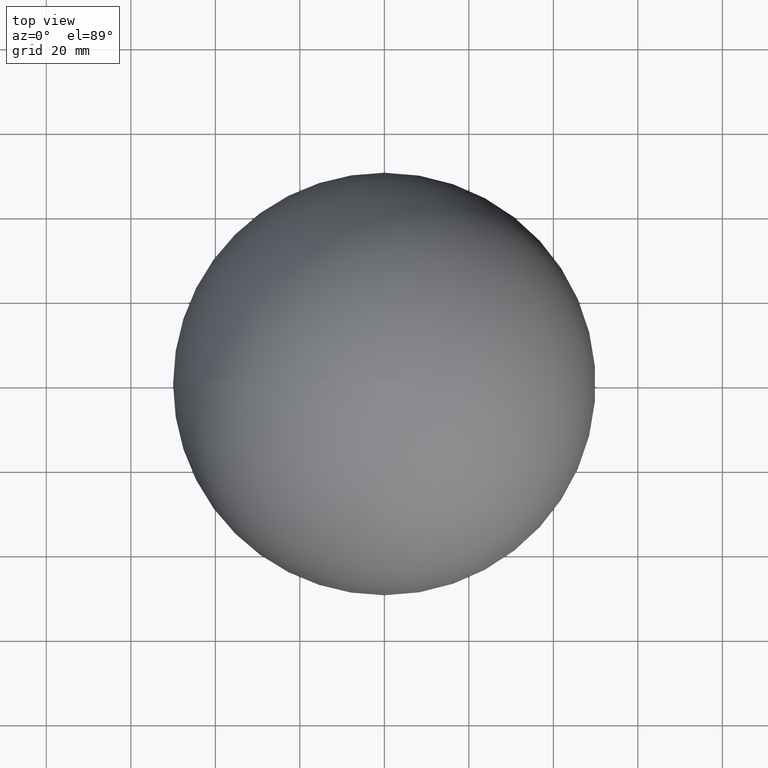
[diagram: clean part render]
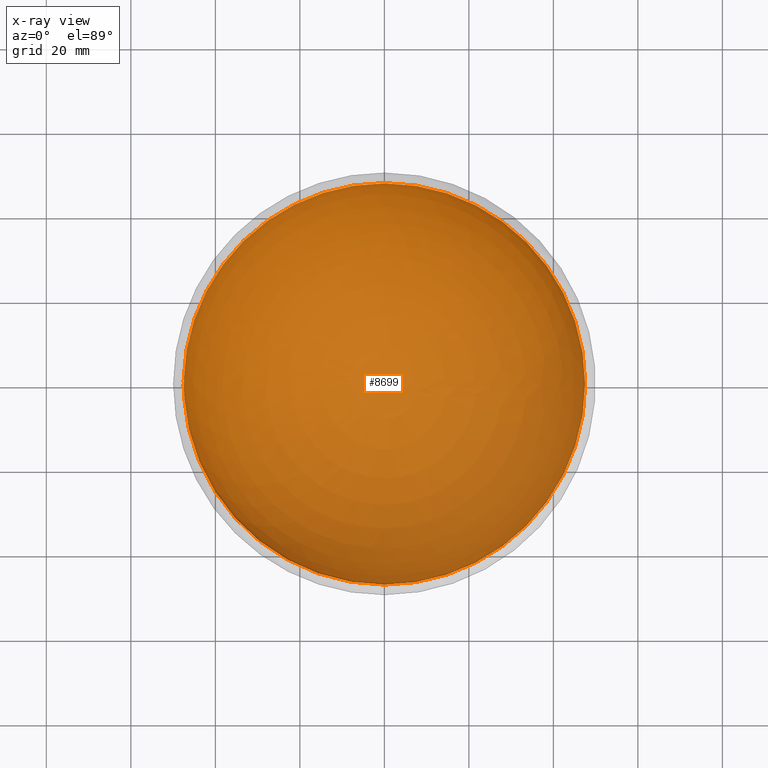
[diagram: x-ray — body ghosted, one internal face saturated and labeled with its STEP entity id]
A machine part, top view, then the same camera in x-ray: the body is ghosted and one INTERNAL B-rep face — a face not visible from any outside direction — is saturated and labeled: STEP entity #8699.
In plain terms, the highlighted spherical surface has radius 47.5 mm.
Its self-contained STEP definition (entity closure, byte-faithful):
#9 = EDGE_CURVE ( 'NONE', #840, #1806, #7534, .T. ) ;
#15 = AXIS2_PLACEMENT_3D ( 'NONE', #3567, #4114, #698 ) ;
#27 = CARTESIAN_POINT ( 'NONE',  ( -47.48951083483721900, 0.7218716717256307100, -0.6905421718595263800 ) ) ;
#28 = CARTESIAN_POINT ( 'NONE',  ( 0.0000000000000000000, -2.727953826613584100, -2.491078912195036300 ) ) ;
#33 = CIRCLE ( 'NONE', #5098, 47.49478478519750300 ) ;
#50 = ORIENTED_EDGE ( 'NONE', *, *, #7180, .F. ) ;
#54 = CARTESIAN_POINT ( 'NONE',  ( -47.44426389566056200, -1.881944444444444900, -1.322916666666668700 ) ) ;
#74 = B_SPLINE_CURVE_WITH_KNOTS ( 'NONE', 3,
 ( #6977, #589, #6123, #3585 ),
 .UNSPECIFIED., .F., .F.,
 ( 4, 4 ),
 ( 5.421010862427522200E-020, 0.0002607720011709091700 ),
 .UNSPECIFIED. ) ;
#75 = CARTESIAN_POINT ( 'NONE',  ( 0.0000000000000000000, 0.0000000000000000000, 0.0000000000000000000 ) ) ;
#89 = CIRCLE ( 'NONE', #603, 47.31415409237739300 ) ;
#103 = VERTEX_POINT ( 'NONE', #2402 ) ;
#115 = DIRECTION ( 'NONE',  ( -0.0000000000000000000, -0.0000000000000000000, -1.000000000000000000 ) ) ;
#127 = CARTESIAN_POINT ( 'NONE',  ( -47.35142568248046800, -1.881944444444444900, -3.248195028712606900 ) ) ;
#130 = CARTESIAN_POINT ( 'NONE',  ( -47.32787593048249200, 0.9825432980797967900, -3.918938300143556900 ) ) ;
#131 = CARTESIAN_POINT ( 'NONE',  ( -47.37329159718103700, -3.204861111111111600, -1.322916666666668700 ) ) ;
#163 = EDGE_CURVE ( 'NONE', #8312, #192, #33, .T. ) ;
#183 = CARTESIAN_POINT ( 'NONE',  ( -47.38971546563284000, 0.4937086838942307800, -3.197048611111110700 ) ) ;
#192 = VERTEX_POINT ( 'NONE', #3253 ) ;
#193 = CARTESIAN_POINT ( 'NONE',  ( -47.30089428961911600, 0.4937086838942307800, -4.316439636752138900 ) ) ;
#195 = VERTEX_POINT ( 'NONE', #8105 ) ;
#209 = DIRECTION ( 'NONE',  ( -1.000000000000000000, -4.707345624410663700E-014, 0.0000000000000000000 ) ) ;
#218 = DIRECTION ( 'NONE',  ( -0.0000000000000000000, -0.0000000000000000000, -1.000000000000000000 ) ) ;
#221 = AXIS2_PLACEMENT_3D ( 'NONE', #5145, #3683, #2323 ) ;
#228 = EDGE_CURVE ( 'NONE', #1518, #4197, #2169, .T. ) ;
#270 = CARTESIAN_POINT ( 'NONE',  ( -47.35779134325427700, 0.6450433113806529600, -3.615927291413507700 ) ) ;
#280 = DIRECTION ( 'NONE',  ( 0.0000000000000000000, -0.0000000000000000000, -1.000000000000000000 ) ) ;
#286 = VERTEX_POINT ( 'NONE', #8431 ) ;
#289 = DIRECTION ( 'NONE',  ( 0.0000000000000000000, 0.0000000000000000000, 1.000000000000000000 ) ) ;
#307 = CARTESIAN_POINT ( 'NONE',  ( -47.39762633587177700, 0.4914593893280817000, -3.078121657465684900 ) ) ;
#308 = CARTESIAN_POINT ( 'NONE',  ( -47.33087894351022100, 0.9799508719211731400, -3.883153674092283000 ) ) ;
#313 = CARTESIAN_POINT ( 'NONE',  ( -47.42923533561443600, 0.7923719618055555800, -2.467748397435897400 ) ) ;
#336 = CARTESIAN_POINT ( 'NONE',  ( -47.34422397275334800, 0.8153388060324116000, -3.756472361714847900 ) ) ;
#380 = EDGE_CURVE ( 'NONE', #7839, #1071, #3025, .T. ) ;
#396 = CARTESIAN_POINT ( 'NONE',  ( -47.40508215437571200, 0.9837072649572650200, -2.835578592414529800 ) ) ;
#397 = CIRCLE ( 'NONE', #4720, 47.37320011918090800 ) ;
#403 = VERTEX_POINT ( 'NONE', #131 ) ;
#409 = CARTESIAN_POINT ( 'NONE',  ( -47.45910806892646900, 0.9643619927370676900, -1.718876023950001800 ) ) ;
#419 = CIRCLE ( 'NONE', #8920, 47.39175946573927000 ) ;
#428 = CARTESIAN_POINT ( 'NONE',  ( -47.49376487495433700, 0.7696089932902180400, -5.913984037729525000E-015 ) ) ;
#460 = AXIS2_PLACEMENT_3D ( 'NONE', #6549, #5948, #6615 ) ;
#476 = FACE_BOUND ( 'NONE', #7568, .T. ) ;
#482 = CARTESIAN_POINT ( 'NONE',  ( -47.40862891463819300, 0.8649839743589744500, -2.814908019497862800 ) ) ;
#486 = CIRCLE ( 'NONE', #2345, 47.49016109295277500 ) ;
#496 = EDGE_LOOP ( 'NONE', ( #8316, #6007, #1557, #5842, #4479, #1266, #3090, #6627, #4840, #3106, #6352, #6700 ) ) ;
#503 = CARTESIAN_POINT ( 'NONE',  ( 0.0000000000000000000, 0.0000000000000000000, -2.120058760683762900 ) ) ;
#514 = EDGE_CURVE ( 'NONE', #4197, #1044, #7890, .T. ) ;
#520 = VERTEX_POINT ( 'NONE', #2488 ) ;
#528 = CARTESIAN_POINT ( 'NONE',  ( 0.0000000000000000000, 0.0000000000000000000, -2.467748397435897400 ) ) ;
#547 = CIRCLE ( 'NONE', #3535, 47.47811784636810000 ) ;
#558 = EDGE_CURVE ( 'NONE', #4182, #8598, #5428, .T. ) ;
#562 = CARTESIAN_POINT ( 'NONE',  ( -47.36306841063383600, 0.3495446881677350400, -3.587139423076925100 ) ) ;
#563 = CARTESIAN_POINT ( 'NONE',  ( -47.48975185067340000, 0.8649839743589744500, -0.4746281550480772000 ) ) ;
#575 = CARTESIAN_POINT ( 'NONE',  ( -47.49189206982836700, 0.5241845285790598400, -0.7038595085470088500 ) ) ;
#589 = CARTESIAN_POINT ( 'NONE',  ( -47.43390806906516800, 0.4364664226125993300, -2.468079878745190700 ) ) ;
#590 = AXIS2_PLACEMENT_3D ( 'NONE', #1640, #5004, #3030 ) ;
#595 = VERTEX_POINT ( 'NONE', #8028 ) ;
#596 = CARTESIAN_POINT ( 'NONE',  ( -47.43456583924771100, 0.3495446881677350400, -2.467748397435897400 ) ) ;
#603 = AXIS2_PLACEMENT_3D ( 'NONE', #1467, #6310, #2813 ) ;
#606 = CARTESIAN_POINT ( 'NONE',  ( -47.49972672454565300, 0.0000000000000000000, -0.1611244658119660400 ) ) ;
#628 = CARTESIAN_POINT ( 'NONE',  ( -47.36306841063383600, 0.3495446881677350400, -3.587139423076925100 ) ) ;
#631 = VERTEX_POINT ( 'NONE', #1126 ) ;
#648 = VERTEX_POINT ( 'NONE', #1836 ) ;
#654 = DIRECTION ( 'NONE',  ( 0.0000000000000000000, 0.0000000000000000000, 1.000000000000000000 ) ) ;
#656 = DIRECTION ( 'NONE',  ( 1.224646799147353200E-016, -1.499759782661883300E-032, -1.000000000000000000 ) ) ;
#658 = CARTESIAN_POINT ( 'NONE',  ( -47.36162405154783500, 0.5240175751247144700, -3.586025030856245400 ) ) ;
#672 = EDGE_CURVE ( 'NONE', #2883, #8875, #4222, .T. ) ;
#673 = CARTESIAN_POINT ( 'NONE',  ( 0.0000000000000000000, 0.0000000000000000000, -2.696714743589743600 ) ) ;
#676 = CARTESIAN_POINT ( 'NONE',  ( 0.0000000000000000000, 0.0000000000000000000, 0.0000000000000000000 ) ) ;
#687 = ORIENTED_EDGE ( 'NONE', *, *, #3361, .F. ) ;
#698 = DIRECTION ( 'NONE',  ( 0.0000000000000000000, 0.7210343373407116500, 0.6928993320646520400 ) ) ;
#705 = CARTESIAN_POINT ( 'NONE',  ( 0.0000000000000000000, -1.881944444444444900, 0.0000000000000000000 ) ) ;
#708 = EDGE_CURVE ( 'NONE', #1991, #5405, #1741, .T. ) ;
#712 = CARTESIAN_POINT ( 'NONE',  ( -47.47290678351473800, 0.9230937574658005800, -1.313549179981739100 ) ) ;
#715 = VERTEX_POINT ( 'NONE', #8126 ) ;
#726 = EDGE_CURVE ( 'NONE', #5688, #4910, #3563, .T. ) ;
#741 = CARTESIAN_POINT ( 'NONE',  ( -47.49145708966514000, 0.5637207360285077000, -0.7037654026947407500 ) ) ;
#754 = CARTESIAN_POINT ( 'NONE',  ( 0.0000000000000000000, -2.017628205128205700, 0.0000000000000000000 ) ) ;
#755 = CIRCLE ( 'NONE', #3305, 47.50000000000000000 ) ;
#775 = AXIS2_PLACEMENT_3D ( 'NONE', #7443, #4017, #1290 ) ;
#780 = CARTESIAN_POINT ( 'NONE',  ( 0.0000000000000000000, 0.0000000000000000000, -1.085470085470086900 ) ) ;
#796 = CARTESIAN_POINT ( 'NONE',  ( 0.0000000000000000000, -2.643342918306002400, -2.414702012349693000 ) ) ;
#803 = EDGE_CURVE ( 'NONE', #7211, #4722, #4671, .T. ) ;
#816 = DIRECTION ( 'NONE',  ( -0.0000000000000000000, -0.0000000000000000000, -1.000000000000000000 ) ) ;
#840 = VERTEX_POINT ( 'NONE', #8383 ) ;
#846 = VERTEX_POINT ( 'NONE', #54 ) ;
#855 = CARTESIAN_POINT ( 'NONE',  ( 0.0000000000000000000, 0.0000000000000000000, -3.197048611111110700 ) ) ;
#874 = CIRCLE ( 'NONE', #5634, 47.50000000000000000 ) ;
#877 = CARTESIAN_POINT ( 'NONE',  ( -47.35905453085124600, 0.6089868790064102400, -3.605424929887822500 ) ) ;
#880 = CARTESIAN_POINT ( 'NONE',  ( -47.29977563255629700, 0.6096150173534630200, -4.314273580313260600 ) ) ;
#883 = EDGE_CURVE ( 'NONE', #5971, #7839, #1853, .T. ) ;
#892 = DIRECTION ( 'NONE',  ( 1.000000000000000000, 0.0000000000000000000, 0.0000000000000000000 ) ) ;
#896 = EDGE_CURVE ( 'NONE', #2426, #7083, #8931, .T. ) ;
#900 = CARTESIAN_POINT ( 'NONE',  ( -47.30030420341037700, 0.5517346801803144600, -4.316269048735588100 ) ) ;
#906 = CARTESIAN_POINT ( 'NONE',  ( -47.41087433175859200, 0.8642756548675580900, -2.777308403000024100 ) ) ;
#912 = EDGE_LOOP ( 'NONE', ( #5713, #4153, #4973, #3181, #939, #4957, #5473, #6790, #8118 ) ) ;
#932 = ORIENTED_EDGE ( 'NONE', *, *, #2924, .F. ) ;
#936 = EDGE_CURVE ( 'NONE', #715, #3771, #5746, .T. ) ;
#939 = ORIENTED_EDGE ( 'NONE', *, *, #6049, .F. ) ;
#951 = CARTESIAN_POINT ( 'NONE',  ( -47.31080550636891500, 0.5832570568439333600, -4.194977093449403500 ) ) ;
#952 = VERTEX_POINT ( 'NONE', #4605 ) ;
#961 = DIRECTION ( 'NONE',  ( 0.0000000000000000000, 0.0000000000000000000, 1.000000000000000000 ) ) ;
#963 = VERTEX_POINT ( 'NONE', #4512 ) ;
#972 = EDGE_CURVE ( 'NONE', #7126, #8794, #8961, .T. ) ;
#984 = DIRECTION ( 'NONE',  ( 1.000000000000000000, -1.224646799147374200E-016, 0.0000000000000000000 ) ) ;
#985 = CARTESIAN_POINT ( 'NONE',  ( -47.40726228875057300, 0.9825429058712394900, -2.799535133442945700 ) ) ;
#989 = CARTESIAN_POINT ( 'NONE',  ( 0.0000000000000000000, 0.0000000000000000000, -0.4579326923076936800 ) ) ;
#993 = CARTESIAN_POINT ( 'NONE',  ( -47.49160434742712800, 0.8914714015652562800, -0.06637350178958559300 ) ) ;
#1001 = DIRECTION ( 'NONE',  ( -0.0000000000000000000, 0.6929516293246059700, -0.7209840770893445300 ) ) ;
#1003 = CARTESIAN_POINT ( 'NONE',  ( -47.42557633242062600, 0.7414933631093473300, -2.552705681466469500 ) ) ;
#1005 = CARTESIAN_POINT ( 'NONE',  ( -47.39646527803984100, 0.6199815352826242300, -3.072572544867561800 ) ) ;
#1016 = FACE_BOUND ( 'NONE', #7648, .T. ) ;
#1021 = ORIENTED_EDGE ( 'NONE', *, *, #8604, .F. ) ;
#1044 = VERTEX_POINT ( 'NONE', #428 ) ;
#1051 = DIRECTION ( 'NONE',  ( -1.000000000000000000, 0.0000000000000000000, 0.0000000000000000000 ) ) ;
#1057 = DIRECTION ( 'NONE',  ( -0.0000000000000000000, -0.0000000000000000000, -1.000000000000000000 ) ) ;
#1070 = CARTESIAN_POINT ( 'NONE',  ( -47.35621293302834500, 0.6792751320107455200, -3.630302233488387200 ) ) ;
#1071 = VERTEX_POINT ( 'NONE', #562 ) ;
#1078 = EDGE_CURVE ( 'NONE', #8702, #1916, #8120, .T. ) ;
#1101 = CARTESIAN_POINT ( 'NONE',  ( -47.32888223640529900, 0.8649839743589744500, -3.934299045138890600 ) ) ;
#1111 = DIRECTION ( 'NONE',  ( 0.0000000000000000000, 0.0000000000000000000, 1.000000000000000000 ) ) ;
#1119 = VERTEX_POINT ( 'NONE', #7490 ) ;
#1125 = CARTESIAN_POINT ( 'NONE',  ( -47.45613174880979600, 0.9193807660515801400, -1.822559561106128900 ) ) ;
#1126 = CARTESIAN_POINT ( 'NONE',  ( -2.908536147975063500E-015, -47.50000000000000000, 0.0000000000000000000 ) ) ;
#1131 = AXIS2_PLACEMENT_3D ( 'NONE', #4551, #3813, #5934 ) ;
#1139 = CARTESIAN_POINT ( 'NONE',  ( -47.40336445894421000, 0.9826347032348117200, -2.864667040192092600 ) ) ;
#1162 = CARTESIAN_POINT ( 'NONE',  ( 0.0000000000000000000, 0.9667467948717949300, 0.0000000000000000000 ) ) ;
#1183 = DIRECTION ( 'NONE',  ( 0.0000000000000000000, 1.000000000000000000, 0.0000000000000000000 ) ) ;
#1186 = DIRECTION ( 'NONE',  ( -0.0000000000000000000, -1.000000000000000000, 0.0000000000000000000 ) ) ;
#1214 = CARTESIAN_POINT ( 'NONE',  ( -47.33950508328567300, -1.881944444444445300, -3.417534722222223200 ) ) ;
#1218 = AXIS2_PLACEMENT_3D ( 'NONE', #2949, #3654, #7202 ) ;
#1221 = ORIENTED_EDGE ( 'NONE', *, *, #7141, .F. ) ;
#1234 = CARTESIAN_POINT ( 'NONE',  ( -47.46392709268504700, 0.9837072649572650200, -1.567783453525640700 ) ) ;
#1237 = VERTEX_POINT ( 'NONE', #8797 ) ;
#1245 = EDGE_CURVE ( 'NONE', #8054, #7126, #7613, .T. ) ;
#1259 = CARTESIAN_POINT ( 'NONE',  ( -47.43098955754700800, 0.6089868790064102400, -2.486033904246794700 ) ) ;
#1266 = ORIENTED_EDGE ( 'NONE', *, *, #1415, .F. ) ;
#1277 = VERTEX_POINT ( 'NONE', #6418 ) ;
#1290 = DIRECTION ( 'NONE',  ( -1.000000000000000000, -3.996802888650564200E-014, 0.0000000000000000000 ) ) ;
#1302 = CARTESIAN_POINT ( 'NONE',  ( -47.39634010237932000, 0.7025955488598646400, -3.056818240384309600 ) ) ;
#1313 = CARTESIAN_POINT ( 'NONE',  ( -47.48883481599721500, 0.8205271461783075800, -0.6235815963147093300 ) ) ;
#1330 = DIRECTION ( 'NONE',  ( 0.0000000000000000000, 0.0000000000000000000, 1.000000000000000000 ) ) ;
#1334 = B_SPLINE_CURVE_WITH_KNOTS ( 'NONE', 3,
 ( #7147, #5052, #5086, #6397, #8444, #2243, #5782, #8467, #2864, #7721 ),
 .UNSPECIFIED., .F., .F.,
 ( 4, 2, 2, 2, 4 ),
 ( 0.0000000000000000000, 0.0001130533026127717300, 0.0002261066052255434600, 0.0003391599078383151700, 0.0004522132104510869200 ),
 .UNSPECIFIED. ) ;
#1362 = EDGE_CURVE ( 'NONE', #1690, #648, #4666, .T. ) ;
#1375 = AXIS2_PLACEMENT_3D ( 'NONE', #3117, #8633, #7257 ) ;
#1376 = CARTESIAN_POINT ( 'NONE',  ( -47.49146536029693500, 0.8339216746455460100, -0.3406579881193393400 ) ) ;
#1384 = EDGE_CURVE ( 'NONE', #4544, #4182, #5317, .T. ) ;
#1403 = CARTESIAN_POINT ( 'NONE',  ( -47.35327905778088100, 0.8484610507484045000, -3.632959726676061200 ) ) ;
#1411 = DIRECTION ( 'NONE',  ( 1.000000000000000000, 8.881784197001252300E-016, 0.0000000000000000000 ) ) ;
#1415 = EDGE_CURVE ( 'NONE', #5271, #4283, #5957, .T. ) ;
#1436 = CIRCLE ( 'NONE', #5258, 47.47811784636810000 ) ;
#1445 = DIRECTION ( 'NONE',  ( 1.000000000000000000, 0.0000000000000000000, 0.0000000000000000000 ) ) ;
#1462 = EDGE_CURVE ( 'NONE', #7671, #3862, #755, .T. ) ;
#1464 = CARTESIAN_POINT ( 'NONE',  ( -47.35464812039698800, -2.475560897435897800, -2.767471704727564800 ) ) ;
#1467 = CARTESIAN_POINT ( 'NONE',  ( 0.0000000000000000000, 0.0000000000000000000, -4.197716346153848500 ) ) ;
#1470 = VERTEX_POINT ( 'NONE', #8638 ) ;
#1489 = CIRCLE ( 'NONE', #6626, 47.48759579820344400 ) ;
#1518 = VERTEX_POINT ( 'NONE', #4791 ) ;
#1525 = DIRECTION ( 'NONE',  ( 0.0000000000000000000, 0.0000000000000000000, 1.000000000000000000 ) ) ;
#1537 = EDGE_CURVE ( 'NONE', #8794, #7211, #874, .T. ) ;
#1539 = AXIS2_PLACEMENT_3D ( 'NONE', #7586, #2007, #2060 ) ;
#1545 = VERTEX_POINT ( 'NONE', #7696 ) ;
#1553 = EDGE_CURVE ( 'NONE', #192, #6992, #2692, .T. ) ;
#1554 = CIRCLE ( 'NONE', #7344, 47.43094496253465300 ) ;
#1557 = ORIENTED_EDGE ( 'NONE', *, *, #6982, .F. ) ;
#1570 = CARTESIAN_POINT ( 'NONE',  ( -47.40862891463819300, 0.8649839743589744500, -2.814908019497862800 ) ) ;
#1581 = ORIENTED_EDGE ( 'NONE', *, *, #7888, .F. ) ;
#1590 = CARTESIAN_POINT ( 'NONE',  ( -47.43203012397900400, 0.9667467948717949300, -2.349025106837606500 ) ) ;
#1596 = EDGE_CURVE ( 'NONE', #6992, #5558, #6929, .T. ) ;
#1601 = CARTESIAN_POINT ( 'NONE',  ( -47.41975266463732900, 0.8152870975334748400, -2.636999521026743400 ) ) ;
#1610 = CARTESIAN_POINT ( 'NONE',  ( -47.31051649377751300, 0.6383481716965384600, -4.190212540991128200 ) ) ;
#1616 = DIRECTION ( 'NONE',  ( -0.0000000000000000000, -0.0000000000000000000, 1.000000000000000000 ) ) ;
#1621 = B_SPLINE_CURVE_WITH_KNOTS ( 'NONE', 3,
 ( #7921, #1848, #6565, #8672, #4506, #3777, #3129, #8613, #5263, #1757 ),
 .UNSPECIFIED., .F., .F.,
 ( 4, 2, 2, 2, 4 ),
 ( 0.0000000000000000000, 8.541386004541015100E-005, 0.0001708277200908203000, 0.0002562415801362304400, 0.0003416554401816406000 ),
 .UNSPECIFIED. ) ;
#1622 = AXIS2_PLACEMENT_3D ( 'NONE', #5571, #2212, #2159 ) ;
#1640 = CARTESIAN_POINT ( 'NONE',  ( 0.0000000000000000000, 0.0000000000000000000, -3.587139423076925100 ) ) ;
#1647 = CARTESIAN_POINT ( 'NONE',  ( -47.30416349264329100, 0.8790287261634123200, -4.218623948049614800 ) ) ;
#1689 = AXIS2_PLACEMENT_3D ( 'NONE', #5499, #8949, #1330 ) ;
#1690 = VERTEX_POINT ( 'NONE', #4286 ) ;
#1692 = CARTESIAN_POINT ( 'NONE',  ( -47.43586435423904400, -2.424679487179487700, -0.4579326923076936800 ) ) ;
#1703 = AXIS2_PLACEMENT_3D ( 'NONE', #5765, #7820, #892 ) ;
#1725 = AXIS2_PLACEMENT_3D ( 'NONE', #6425, #280, #984 ) ;
#1726 = CARTESIAN_POINT ( 'NONE',  ( -47.38823136957580600, 0.7813700866058902500, -3.162016590099118800 ) ) ;
#1728 = DIRECTION ( 'NONE',  ( -0.0000000000000000000, -0.0000000000000000000, 1.000000000000000000 ) ) ;
#1741 = CIRCLE ( 'NONE', #6200, 47.36435823231860100 ) ;
#1747 = B_SPLINE_CURVE_WITH_KNOTS ( 'NONE', 3,
 ( #1234, #6817, #3420, #712, #4825, #2132, #4124, #2749, #5527, #4150 ),
 .UNSPECIFIED., .F., .F.,
 ( 4, 2, 2, 2, 4 ),
 ( 0.0000000000000000000, 0.0001962688185466682800, 0.0003925376370933365700, 0.0005888064556400048800, 0.0007850752741866731400 ),
 .UNSPECIFIED. ) ;
#1752 = EDGE_CURVE ( 'NONE', #631, #3862, #2038, .T. ) ;
#1755 = CARTESIAN_POINT ( 'NONE',  ( -47.39066239840081400, 0.8788896709773588200, -3.099359748690288200 ) ) ;
#1757 = CARTESIAN_POINT ( 'NONE',  ( -47.31058724528835300, 0.6747087005876067900, -4.183670956864318700 ) ) ;
#1766 = CARTESIAN_POINT ( 'NONE',  ( -47.42011978646233000, 0.9176847106088258400, -2.596415314148286400 ) ) ;
#1773 = CARTESIAN_POINT ( 'NONE',  ( 0.0000000000000000000, 0.0000000000000000000, 0.0000000000000000000 ) ) ;
#1775 = EDGE_CURVE ( 'NONE', #963, #4539, #7574, .T. ) ;
#1780 = CARTESIAN_POINT ( 'NONE',  ( -47.38854857840403400, 0.6095493163033504100, -3.194882025859582700 ) ) ;
#1801 = CARTESIAN_POINT ( 'NONE',  ( -47.46143148780986100, 0.9804348573520729200, -1.644000047204000400 ) ) ;
#1806 = VERTEX_POINT ( 'NONE', #3696 ) ;
#1811 = CARTESIAN_POINT ( 'NONE',  ( -47.40508215437571200, 0.9837072649572650200, -2.835578592414529800 ) ) ;
#1819 = CIRCLE ( 'NONE', #2837, 47.49985162903427500 ) ;
#1824 = ORIENTED_EDGE ( 'NONE', *, *, #6625, .F. ) ;
#1827 = CIRCLE ( 'NONE', #7274, 47.40073997725798400 ) ;
#1831 = AXIS2_PLACEMENT_3D ( 'NONE', #7134, #4457, #961 ) ;
#1836 = CARTESIAN_POINT ( 'NONE',  ( -47.31497220595393600, -3.204861111111111600, -2.696714743589743600 ) ) ;
#1848 = CARTESIAN_POINT ( 'NONE',  ( -47.32652307905104300, 0.8641369268719338900, -3.962865496699432100 ) ) ;
#1853 = CIRCLE ( 'NONE', #1218, 47.50000000000000000 ) ;
#1872 = CARTESIAN_POINT ( 'NONE',  ( -47.49272339109459300, 0.8157761457791211600, -0.1770651629392066000 ) ) ;
#1880 = EDGE_CURVE ( 'NONE', #3771, #3974, #8755, .T. ) ;
#1911 = CIRCLE ( 'NONE', #1831, 47.43094496253465300 ) ;
#1916 = VERTEX_POINT ( 'NONE', #7793 ) ;
#1920 = CARTESIAN_POINT ( 'NONE',  ( 0.0000000000000000000, 0.0000000000000000000, -3.587139423076925100 ) ) ;
#1946 = ORIENTED_EDGE ( 'NONE', *, *, #672, .F. ) ;
#1948 = CARTESIAN_POINT ( 'NONE',  ( -47.39263914550789300, -1.881944444444444900, -2.577991452991453200 ) ) ;
#1955 = CARTESIAN_POINT ( 'NONE',  ( 8.725608443924992900E-015, 47.50000000000000000, 0.0000000000000000000 ) ) ;
#1963 = CARTESIAN_POINT ( 'NONE',  ( -47.40070553744785500, 0.8360918512808110900, -2.953793789091316800 ) ) ;
#1974 = AXIS2_PLACEMENT_3D ( 'NONE', #5839, #5775, #8459 ) ;
#1978 = DIRECTION ( 'NONE',  ( 1.224646799147353200E-016, -1.499759782661883300E-032, -1.000000000000000000 ) ) ;
#1982 = CIRCLE ( 'NONE', #4369, 47.43807468041310200 ) ;
#1983 = CARTESIAN_POINT ( 'NONE',  ( -47.49727087141698000, 0.4855026814097230200, -0.1629421934515249100 ) ) ;
#1985 = CARTESIAN_POINT ( 'NONE',  ( -47.40694694914619600, 0.8641362844920779100, -2.843496135148445800 ) ) ;
#1991 = VERTEX_POINT ( 'NONE', #2872 ) ;
#2002 = CARTESIAN_POINT ( 'NONE',  ( -47.48891493621032100, 0.7922952819603451500, -0.6533091926810890000 ) ) ;
#2007 = DIRECTION ( 'NONE',  ( -0.0000000000000000000, -0.0000000000000000000, 1.000000000000000000 ) ) ;
#2014 = ORIENTED_EDGE ( 'NONE', *, *, #1462, .F. ) ;
#2025 = VERTEX_POINT ( 'NONE', #127 ) ;
#2029 = DIRECTION ( 'NONE',  ( 0.0000000000000000000, 0.0000000000000000000, -1.000000000000000000 ) ) ;
#2031 = CIRCLE ( 'NONE', #1974, 47.46270414871053600 ) ;
#2038 = CIRCLE ( 'NONE', #2072, 47.50000000000000000 ) ;
#2042 = AXIS2_PLACEMENT_3D ( 'NONE', #2557, #1978, #3317 ) ;
#2052 = CARTESIAN_POINT ( 'NONE',  ( 0.0000000000000000000, 0.0000000000000000000, -1.441639957264959200 ) ) ;
#2060 = DIRECTION ( 'NONE',  ( -1.000000000000000000, 0.0000000000000000000, 0.0000000000000000000 ) ) ;
#2062 = DIRECTION ( 'NONE',  ( 0.0000000000000000000, 0.0000000000000000000, -1.000000000000000000 ) ) ;
#2065 = EDGE_CURVE ( 'NONE', #5686, #5723, #4394, .T. ) ;
#2069 = EDGE_LOOP ( 'NONE', ( #7314, #7235, #6874, #7954, #4664, #7855, #6875, #3529, #6047, #932, #5267, #5464, #2846, #50 ) ) ;
#2072 = AXIS2_PLACEMENT_3D ( 'NONE', #75, #3606, #4914 ) ;
#2076 = DIRECTION ( 'NONE',  ( -0.0000000000000000000, -0.0000000000000000000, -1.000000000000000000 ) ) ;
#2081 = SPHERICAL_SURFACE ( 'NONE', #1725, 47.50000000000000000 ) ;
#2083 = CARTESIAN_POINT ( 'NONE',  ( -47.49002221998504300, 0.6818051690701524300, -0.6960515514801068900 ) ) ;
#2095 = CIRCLE ( 'NONE', #6463, 47.49878879489236300 ) ;
#2101 = DIRECTION ( 'NONE',  ( 0.0000000000000000000, 0.0000000000000000000, -1.000000000000000000 ) ) ;
#2121 = ORIENTED_EDGE ( 'NONE', *, *, #2621, .F. ) ;
#2130 = CARTESIAN_POINT ( 'NONE',  ( -47.44469137419005000, 0.9667467948717949300, -2.077657585470085200 ) ) ;
#2132 = CARTESIAN_POINT ( 'NONE',  ( -47.47915060521093300, 0.7939253832562820400, -1.163748868648023500 ) ) ;
#2151 = EDGE_CURVE ( 'NONE', #2981, #8312, #6291, .T. ) ;
#2159 = DIRECTION ( 'NONE',  ( 0.0000000000000000000, 0.0000000000000000000, 1.000000000000000000 ) ) ;
#2169 = CIRCLE ( 'NONE', #4159, 47.42723413613823900 ) ;
#2182 = EDGE_CURVE ( 'NONE', #1237, #1277, #8435, .T. ) ;
#2198 = VERTEX_POINT ( 'NONE', #6860 ) ;
#2212 = DIRECTION ( 'NONE',  ( -0.0000000000000000000, -1.000000000000000000, 0.0000000000000000000 ) ) ;
#2235 = CIRCLE ( 'NONE', #7153, 47.44721124499160000 ) ;
#2243 = CARTESIAN_POINT ( 'NONE',  ( -47.46521699408990700, 0.04434330204534412500, -1.817308874119936400 ) ) ;
#2248 = CARTESIAN_POINT ( 'NONE',  ( 0.0000000000000000000, 0.0000000000000000000, -0.04240117521367545200 ) ) ;
#2288 = B_SPLINE_CURVE_WITH_KNOTS ( 'NONE', 3,
 ( #5123, #985, #2366, #3821, #5345, #1766, #8049, #3241, #3115, #6670 ),
 .UNSPECIFIED., .F., .F.,
 ( 4, 2, 2, 2, 4 ),
 ( 0.0000000000000000000, 0.0001073239436472173800, 0.0002146478872944347500, 0.0003219718309416521300, 0.0004292957745888695000 ),
 .UNSPECIFIED. ) ;
#2289 = CARTESIAN_POINT ( 'NONE',  ( -47.30024007077506100, 0.7815371036549027000, -4.281337671553089300 ) ) ;
#2296 = CARTESIAN_POINT ( 'NONE',  ( 0.0000000000000000000, 0.9667467948717949300, 0.0000000000000000000 ) ) ;
#2300 = CARTESIAN_POINT ( 'NONE',  ( -47.31163390742445800, 0.4914588043993401400, -4.197512686352118800 ) ) ;
#2305 = DIRECTION ( 'NONE',  ( 0.0000000000000000000, 0.0000000000000000000, 1.000000000000000000 ) ) ;
#2314 = CIRCLE ( 'NONE', #6931, 47.50000000000000000 ) ;
#2323 = DIRECTION ( 'NONE',  ( 0.0000000000000000000, 0.0000000000000000000, 1.000000000000000000 ) ) ;
#2333 = DIRECTION ( 'NONE',  ( 0.0000000000000000000, 1.000000000000000000, 0.0000000000000000000 ) ) ;
#2340 = ORIENTED_EDGE ( 'NONE', *, *, #5151, .F. ) ;
#2345 = AXIS2_PLACEMENT_3D ( 'NONE', #1162, #3243, #3859 ) ;
#2356 = CARTESIAN_POINT ( 'NONE',  ( -47.39659179922409000, 0.6016458338008764400, -3.074320636852450900 ) ) ;
#2366 = CARTESIAN_POINT ( 'NONE',  ( -47.40941605477262800, 0.9799483347039317200, -2.763739302173989100 ) ) ;
#2367 = CARTESIAN_POINT ( 'NONE',  ( 0.0000000000000000000, 0.0000000000000000000, -0.1187232905982907000 ) ) ;
#2371 = VERTEX_POINT ( 'NONE', #1590 ) ;
#2388 = CARTESIAN_POINT ( 'NONE',  ( -47.33687538535445300, 0.9635215930436490400, -3.813547249527060600 ) ) ;
#2401 = CARTESIAN_POINT ( 'NONE',  ( -47.39282114711684800, 0.9183475874063470300, -3.054585196893336200 ) ) ;
#2402 = CARTESIAN_POINT ( 'NONE',  ( -47.36982731119150700, -3.204861111111111600, -1.441639957264959200 ) ) ;
#2408 = CARTESIAN_POINT ( 'NONE',  ( 0.0000000000000000000, 0.0000000000000000000, -3.078325320512820300 ) ) ;
#2420 = DIRECTION ( 'NONE',  ( -0.0000000000000000000, -0.0000000000000000000, -1.000000000000000000 ) ) ;
#2426 = VERTEX_POINT ( 'NONE', #1259 ) ;
#2454 = EDGE_CURVE ( 'NONE', #1071, #6005, #3562, .T. ) ;
#2488 = CARTESIAN_POINT ( 'NONE',  ( -47.38354029502480800, -2.560363247863248300, -2.120058760683762900 ) ) ;
#2497 = CARTESIAN_POINT ( 'NONE',  ( 0.0000000000000000000, 0.0000000000000000000, -1.441639957264959200 ) ) ;
#2508 = CARTESIAN_POINT ( 'NONE',  ( -47.48611319553191400, 0.8822327455162347600, -0.7372871724228619000 ) ) ;
#2528 = ORIENTED_EDGE ( 'NONE', *, *, #4325, .F. ) ;
#2554 = CARTESIAN_POINT ( 'NONE',  ( -47.48764892423145800, 0.9822432159110469100, -0.4580276882441877700 ) ) ;
#2557 = CARTESIAN_POINT ( 'NONE',  ( 0.0000000000000000000, 0.0000000000000000000, 0.0000000000000000000 ) ) ;
#2568 = CARTESIAN_POINT ( 'NONE',  ( -47.38603185222129400, -1.881944444444444900, -2.696714743589743600 ) ) ;
#2576 = CARTESIAN_POINT ( 'NONE',  ( 0.0000000000000000000, 0.0000000000000000000, -0.8225827991452993000 ) ) ;
#2584 = CARTESIAN_POINT ( 'NONE',  ( -47.48968415085517600, 0.9386014486885573300, -0.3167023342863126100 ) ) ;
#2600 = CARTESIAN_POINT ( 'NONE',  ( -47.42873430409362400, -2.560363247863248300, -0.4579326923076936800 ) ) ;
#2612 = CARTESIAN_POINT ( 'NONE',  ( -47.48722985379276200, 0.9837072649572650200, -0.4952987279647437200 ) ) ;
#2619 = AXIS2_PLACEMENT_3D ( 'NONE', #4685, #5420, #8915 ) ;
#2621 = EDGE_CURVE ( 'NONE', #2198, #5501, #4537, .T. ) ;
#2624 = CIRCLE ( 'NONE', #6081, 47.36488100278302200 ) ;
#2630 = DIRECTION ( 'NONE',  ( 1.000000000000000000, 0.0000000000000000000, 0.0000000000000000000 ) ) ;
#2651 = CARTESIAN_POINT ( 'NONE',  ( -47.49599209085676700, 0.5945463006083764300, -0.1739346041500036700 ) ) ;
#2653 = CARTESIAN_POINT ( 'NONE',  ( -47.39838489385955700, 0.8018166175135813500, -3.000172052652547700 ) ) ;
#2667 = CARTESIAN_POINT ( 'NONE',  ( 0.0000000000000000000, 0.0000000000000000000, 0.0000000000000000000 ) ) ;
#2673 = B_SPLINE_CURVE_WITH_KNOTS ( 'NONE', 3,
 ( #6465, #3737, #8544, #993, #4400, #8568 ),
 .UNSPECIFIED., .F., .F.,
 ( 4, 2, 4 ),
 ( 0.0000000000000000000, 0.0001197103187846459400, 0.0002394206375692918800 ),
 .UNSPECIFIED. ) ;
#2680 = CIRCLE ( 'NONE', #3123, 47.39175946573927000 ) ;
#2692 = CIRCLE ( 'NONE', #1622, 47.50000000000000000 ) ;
#2702 = CARTESIAN_POINT ( 'NONE',  ( -47.49106859498775900, 0.8455491868942970300, -0.3663458894674628800 ) ) ;
#2705 = AXIS2_PLACEMENT_3D ( 'NONE', #8566, #8721, #8841 ) ;
#2712 = CARTESIAN_POINT ( 'NONE',  ( -47.49098615065122400, 0.6031961181869190900, -0.7028124836815398100 ) ) ;
#2716 = AXIS2_PLACEMENT_3D ( 'NONE', #28, #3504, #3339 ) ;
#2749 = CARTESIAN_POINT ( 'NONE',  ( -47.48390842636763400, 0.6187451640658384600, -1.072333312857438600 ) ) ;
#2764 = ORIENTED_EDGE ( 'NONE', *, *, #514, .F. ) ;
#2769 = AXIS2_PLACEMENT_3D ( 'NONE', #5856, #8714, #5218 ) ;
#2813 = DIRECTION ( 'NONE',  ( -1.000000000000000000, 1.394440118929196600E-013, 0.0000000000000000000 ) ) ;
#2820 = CARTESIAN_POINT ( 'NONE',  ( -47.26466920216886100, -3.204861111111111600, -3.468416132478632500 ) ) ;
#2831 = CARTESIAN_POINT ( 'NONE',  ( -47.37932692590764100, -3.204861111111111600, -1.085470085470086900 ) ) ;
#2837 = AXIS2_PLACEMENT_3D ( 'NONE', #2367, #2420, #5222 ) ;
#2846 = ORIENTED_EDGE ( 'NONE', *, *, #8846, .F. ) ;
#2854 = EDGE_CURVE ( 'NONE', #103, #595, #547, .T. ) ;
#2864 = CARTESIAN_POINT ( 'NONE',  ( -47.46042465738787500, 0.1389857504918690900, -1.933958765996120600 ) ) ;
#2872 = CARTESIAN_POINT ( 'NONE',  ( -47.35772985937514100, 0.7923719618055555800, -3.587139423076925100 ) ) ;
#2883 = VERTEX_POINT ( 'NONE', #7501 ) ;
#2894 = EDGE_CURVE ( 'NONE', #3642, #5036, #2680, .T. ) ;
#2915 = AXIS2_PLACEMENT_3D ( 'NONE', #8597, #1616, #1051 ) ;
#2919 = DIRECTION ( 'NONE',  ( 1.000000000000000000, 0.0000000000000000000, 0.0000000000000000000 ) ) ;
#2924 = EDGE_CURVE ( 'NONE', #7083, #8054, #8398, .T. ) ;
#2932 = DIRECTION ( 'NONE',  ( 0.0000000000000000000, 0.7383164886267648000, 0.6744544184908601900 ) ) ;
#2949 = CARTESIAN_POINT ( 'NONE',  ( 0.0000000000000000000, 0.0000000000000000000, 0.0000000000000000000 ) ) ;
#2959 = CIRCLE ( 'NONE', #5833, 47.42338800203656700 ) ;
#2981 = VERTEX_POINT ( 'NONE', #563 ) ;
#2990 = CARTESIAN_POINT ( 'NONE',  ( -47.31196865008087800, 0.4547526041666666900, -4.197716346153848500 ) ) ;
#3025 = CIRCLE ( 'NONE', #590, 47.36435823231860100 ) ;
#3030 = DIRECTION ( 'NONE',  ( 1.000000000000000000, 0.0000000000000000000, 0.0000000000000000000 ) ) ;
#3039 = EDGE_CURVE ( 'NONE', #5723, #4284, #89, .T. ) ;
#3040 = CARTESIAN_POINT ( 'NONE',  ( -47.41760399575031200, 0.8339554902493349100, -2.669594307632207700 ) ) ;
#3064 = CARTESIAN_POINT ( 'NONE',  ( -47.33989701346548900, 0.9509177231599111900, -3.779045926239464200 ) ) ;
#3071 = DIRECTION ( 'NONE',  ( -1.000000000000000000, -7.185363415374013100E-013, 0.0000000000000000000 ) ) ;
#3080 = VERTEX_POINT ( 'NONE', #2612 ) ;
#3089 = CARTESIAN_POINT ( 'NONE',  ( 0.0000000000000000000, -2.424679487179487700, 0.0000000000000000000 ) ) ;
#3090 = ORIENTED_EDGE ( 'NONE', *, *, #3484, .F. ) ;
#3103 = DIRECTION ( 'NONE',  ( 0.0000000000000000000, 0.0000000000000000000, -1.000000000000000000 ) ) ;
#3106 = ORIENTED_EDGE ( 'NONE', *, *, #3400, .F. ) ;
#3115 = CARTESIAN_POINT ( 'NONE',  ( -47.42758649328104800, 0.8206010198725656200, -2.490374454856885600 ) ) ;
#3117 = CARTESIAN_POINT ( 'NONE',  ( 0.0000000000000000000, 0.0000000000000000000, -2.077657585470085200 ) ) ;
#3123 = AXIS2_PLACEMENT_3D ( 'NONE', #8262, #7555, #654 ) ;
#3129 = CARTESIAN_POINT ( 'NONE',  ( -47.31295039750764900, 0.7799177739418741200, -4.138512088175208900 ) ) ;
#3130 = DIRECTION ( 'NONE',  ( 1.000000000000000000, 8.881784197001252300E-016, 0.0000000000000000000 ) ) ;
#3134 = CARTESIAN_POINT ( 'NONE',  ( -47.34961039123361100, 0.7687837945062173700, -3.697941701929728700 ) ) ;
#3139 = CARTESIAN_POINT ( 'NONE',  ( -47.40014676370832800, 0.0000000000000000000, -3.078325320512820300 ) ) ;
#3165 = B_SPLINE_CURVE_WITH_KNOTS ( 'NONE', 3,
 ( #4913, #4608, #4860, #7835, #7686, #2508, #6398, #7175, #7454, #8349, #7388, #8770 ),
 .UNSPECIFIED., .F., .F.,
 ( 4, 2, 2, 2, 2, 4 ),
 ( 0.0000000000000000000, 0.0001605737158922831800, 0.0003211474317845663600, 0.0004817211476768494900, 0.0005620080056229911300, 0.0006422948635691328300 ),
 .UNSPECIFIED. ) ;
#3181 = ORIENTED_EDGE ( 'NONE', *, *, #7780, .F. ) ;
#3183 = DIRECTION ( 'NONE',  ( -1.000000000000000000, 9.325873406851314900E-014, 0.0000000000000000000 ) ) ;
#3196 = CIRCLE ( 'NONE', #7334, 47.48759579820344400 ) ;
#3223 = CARTESIAN_POINT ( 'NONE',  ( -47.48664725933264200, 0.3538974846403494800, -1.071202312865557900 ) ) ;
#3229 = CARTESIAN_POINT ( 'NONE',  ( -47.41616394878509800, -2.424679487179487700, -1.441639957264959200 ) ) ;
#3241 = CARTESIAN_POINT ( 'NONE',  ( -47.42587563169651300, 0.8484182665391467600, -2.513528251063426500 ) ) ;
#3243 = DIRECTION ( 'NONE',  ( 0.0000000000000000000, 1.000000000000000000, 0.0000000000000000000 ) ) ;
#3253 = CARTESIAN_POINT ( 'NONE',  ( -47.49478478519750300, 0.0000000000000000000, -0.7038595085470088500 ) ) ;
#3258 = DIRECTION ( 'NONE',  ( 1.000000000000000000, 0.0000000000000000000, 0.0000000000000000000 ) ) ;
#3266 = DIRECTION ( 'NONE',  ( 0.0000000000000000000, 0.0000000000000000000, 1.000000000000000000 ) ) ;
#3305 = AXIS2_PLACEMENT_3D ( 'NONE', #2667, #656, #5466 ) ;
#3317 = DIRECTION ( 'NONE',  ( -1.000000000000000000, 0.0000000000000000000, -1.224646799147353200E-016 ) ) ;
#3320 = CIRCLE ( 'NONE', #2042, 47.50000000000000000 ) ;
#3323 = CARTESIAN_POINT ( 'NONE',  ( -47.49358481621526100, 0.7470576227665907100, -0.2331974456360484100 ) ) ;
#3326 = CARTESIAN_POINT ( 'NONE',  ( -47.40526520800088400, 0.8623300303157274100, -2.871939439387718000 ) ) ;
#3339 = DIRECTION ( 'NONE',  ( 0.0000000000000000000, -0.6743193281498541800, 0.7384398714069613200 ) ) ;
#3351 = CARTESIAN_POINT ( 'NONE',  ( -47.34555420695050300, 0.9177158159948853900, -3.715854732379837900 ) ) ;
#3356 = CARTESIAN_POINT ( 'NONE',  ( -47.48975185067340000, 0.8649839743589744500, -0.4746281550480772000 ) ) ;
#3361 = EDGE_CURVE ( 'NONE', #8536, #7853, #5508, .T. ) ;
#3369 = EDGE_CURVE ( 'NONE', #5830, #2426, #74, .T. ) ;
#3378 = EDGE_CURVE ( 'NONE', #5558, #3080, #3165, .T. ) ;
#3391 = CARTESIAN_POINT ( 'NONE',  ( -47.49694602884147100, 0.5390568232427251900, -0.04229841957741192800 ) ) ;
#3400 = EDGE_CURVE ( 'NONE', #1545, #963, #1827, .T. ) ;
#3420 = CARTESIAN_POINT ( 'NONE',  ( -47.46835967528594600, 0.9725711590262335900, -1.436428587818068700 ) ) ;
#3469 = DIRECTION ( 'NONE',  ( 0.0000000000000000000, 0.0000000000000000000, -1.000000000000000000 ) ) ;
#3484 = EDGE_CURVE ( 'NONE', #6250, #5271, #1489, .T. ) ;
#3502 = EDGE_CURVE ( 'NONE', #4502, #2883, #2031, .T. ) ;
#3503 = CIRCLE ( 'NONE', #1703, 47.49779255554215500 ) ;
#3504 = DIRECTION ( 'NONE',  ( -0.0000000000000000000, -0.7384398714069612100, -0.6743193281498540700 ) ) ;
#3529 = ORIENTED_EDGE ( 'NONE', *, *, #972, .F. ) ;
#3535 = AXIS2_PLACEMENT_3D ( 'NONE', #2052, #8870, #2630 ) ;
#3561 = AXIS2_PLACEMENT_3D ( 'NONE', #8209, #6039, #6735 ) ;
#3562 = B_SPLINE_CURVE_WITH_KNOTS ( 'NONE', 3,
 ( #628, #6046, #658, #877 ),
 .UNSPECIFIED., .F., .F.,
 ( 4, 4 ),
 ( 5.421010862427522200E-020, 0.0002607810789762170300 ),
 .UNSPECIFIED. ) ;
#3563 = CIRCLE ( 'NONE', #7592, 47.42338800203656700 ) ;
#3567 = CARTESIAN_POINT ( 'NONE',  ( 0.0000000000000000000, 0.1151090138980606400, -0.1197829868165996300 ) ) ;
#3578 = EDGE_CURVE ( 'NONE', #5501, #5131, #5744, .T. ) ;
#3585 = CARTESIAN_POINT ( 'NONE',  ( -47.43098955754700800, 0.6089868790064102400, -2.486033904246794700 ) ) ;
#3596 = CARTESIAN_POINT ( 'NONE',  ( -47.46149199182234200, -1.881944444444444900, -0.3392094017094030600 ) ) ;
#3606 = DIRECTION ( 'NONE',  ( 0.0000000000000000000, 0.0000000000000000000, 1.000000000000000000 ) ) ;
#3617 = CARTESIAN_POINT ( 'NONE',  ( -47.32243430012874100, 0.9826357601107320600, -3.984029402792710800 ) ) ;
#3618 = CARTESIAN_POINT ( 'NONE',  ( -47.32484057381628200, 0.9837072649572650200, -3.954969618055557100 ) ) ;
#3619 = EDGE_CURVE ( 'NONE', #4722, #6163, #4117, .T. ) ;
#3633 = ORIENTED_EDGE ( 'NONE', *, *, #6880, .F. ) ;
#3634 = EDGE_CURVE ( 'NONE', #7523, #1119, #419, .T. ) ;
#3642 = VERTEX_POINT ( 'NONE', #6528 ) ;
#3643 = ORIENTED_EDGE ( 'NONE', *, *, #6388, .F. ) ;
#3654 = DIRECTION ( 'NONE',  ( -0.0000000000000000000, -1.000000000000000000, 0.0000000000000000000 ) ) ;
#3668 = DIRECTION ( 'NONE',  ( 0.0000000000000000000, 1.000000000000000000, 0.0000000000000000000 ) ) ;
#3671 = AXIS2_PLACEMENT_3D ( 'NONE', #6033, #4647, #6757 ) ;
#3672 = CARTESIAN_POINT ( 'NONE',  ( -47.39796528639275400, 0.4547526041666666900, -3.078325320512820300 ) ) ;
#3678 = CARTESIAN_POINT ( 'NONE',  ( -47.31548109984565500, 0.9683990306636282000, -4.069187064037195400 ) ) ;
#3683 = DIRECTION ( 'NONE',  ( -0.0000000000000000000, -1.000000000000000000, 0.0000000000000000000 ) ) ;
#3693 = CARTESIAN_POINT ( 'NONE',  ( -47.32484057381628200, 0.9837072649572650200, -3.954969618055557100 ) ) ;
#3696 = CARTESIAN_POINT ( 'NONE',  ( -47.44471446978494100, -2.017628205128205700, -1.085470085470086900 ) ) ;
#3698 = AXIS2_PLACEMENT_3D ( 'NONE', #754, #7709, #6349 ) ;
#3717 = VERTEX_POINT ( 'NONE', #8670 ) ;
#3724 = CARTESIAN_POINT ( 'NONE',  ( -47.31068742431089200, 0.6016448191603670500, -4.193711747500214100 ) ) ;
#3733 = VERTEX_POINT ( 'NONE', #4540 ) ;
#3737 = CARTESIAN_POINT ( 'NONE',  ( -47.49330715477668000, 0.7882028241264521500, -0.1270455746287722000 ) ) ;
#3753 = CARTESIAN_POINT ( 'NONE',  ( 0.0000000000000000000, 0.0000000000000000000, -1.958934294871794300 ) ) ;
#3771 = VERTEX_POINT ( 'NONE', #606 ) ;
#3777 = CARTESIAN_POINT ( 'NONE',  ( -47.31424264483424500, 0.8018803697303773500, -4.119498167603843800 ) ) ;
#3783 = EDGE_CURVE ( 'NONE', #3080, #8210, #8340, .T. ) ;
#3801 = CARTESIAN_POINT ( 'NONE',  ( 0.0000000000000000000, 0.0000000000000000000, 0.0000000000000000000 ) ) ;
#3810 = CARTESIAN_POINT ( 'NONE',  ( -47.31415409237739300, 0.0000000000000000000, -4.197716346153848500 ) ) ;
#3813 = DIRECTION ( 'NONE',  ( -0.0000000000000000000, -1.000000000000000000, 0.0000000000000000000 ) ) ;
#3821 = CARTESIAN_POINT ( 'NONE',  ( -47.41376070234461800, 0.9635078920813373600, -2.694110785825163800 ) ) ;
#3833 = DIRECTION ( 'NONE',  ( -0.0000000000000000000, -1.000000000000000000, 0.0000000000000000000 ) ) ;
#3844 = CARTESIAN_POINT ( 'NONE',  ( 0.0000000000000000000, -2.424679487179487700, 0.0000000000000000000 ) ) ;
#3859 = DIRECTION ( 'NONE',  ( 0.0000000000000000000, 0.0000000000000000000, -1.000000000000000000 ) ) ;
#3862 = VERTEX_POINT ( 'NONE', #1955 ) ;
#3887 = DIRECTION ( 'NONE',  ( -0.0000000000000000000, -0.0000000000000000000, -1.000000000000000000 ) ) ;
#3889 = CARTESIAN_POINT ( 'NONE',  ( -47.45397420465451400, 0.8473676330864671200, -1.911474180714084300 ) ) ;
#3894 = DIRECTION ( 'NONE',  ( -0.0000000000000000000, -1.000000000000000000, 0.0000000000000000000 ) ) ;
#3896 = EDGE_CURVE ( 'NONE', #4160, #952, #1747, .T. ) ;
#3903 = B_SPLINE_CURVE_WITH_KNOTS ( 'NONE', 3,
 ( #8158, #7415, #3223, #6149, #6020, #3995, #4668, #8067, #7451, #3924 ),
 .UNSPECIFIED., .F., .F.,
 ( 4, 2, 2, 2, 4 ),
 ( 0.0000000000000000000, 0.0001968435314321139000, 0.0003936870628642278100, 0.0005905305942963416600, 0.0007873741257284556100 ),
 .UNSPECIFIED. ) ;
#3924 = CARTESIAN_POINT ( 'NONE',  ( -47.47423919238835300, -0.01696047008547008400, -1.564073350694444200 ) ) ;
#3930 = DIRECTION ( 'NONE',  ( -1.000000000000000000, -1.865174681370263000E-014, 0.0000000000000000000 ) ) ;
#3937 = FACE_BOUND ( 'NONE', #2069, .T. ) ;
#3963 = ORIENTED_EDGE ( 'NONE', *, *, #8659, .F. ) ;
#3974 = VERTEX_POINT ( 'NONE', #7532 ) ;
#3983 = DIRECTION ( 'NONE',  ( -0.0000000000000000000, -0.0000000000000000000, 1.000000000000000000 ) ) ;
#3993 = ORIENTED_EDGE ( 'NONE', *, *, #5621, .F. ) ;
#3994 = CARTESIAN_POINT ( 'NONE',  ( -47.48807043034268100, 0.9783307882166988300, -0.4212127996676530700 ) ) ;
#3995 = CARTESIAN_POINT ( 'NONE',  ( -47.48341998289004800, 0.08353054143666606400, -1.253884512988182800 ) ) ;
#4017 = DIRECTION ( 'NONE',  ( -0.0000000000000000000, -0.0000000000000000000, 1.000000000000000000 ) ) ;
#4028 = AXIS2_PLACEMENT_3D ( 'NONE', #6590, #3668, #7939 ) ;
#4045 = CIRCLE ( 'NONE', #6991, 47.46270414871053600 ) ;
#4053 = CARTESIAN_POINT ( 'NONE',  ( -47.39754501644950600, 0.7798493606765011200, -3.019170297435506800 ) ) ;
#4056 = ORIENTED_EDGE ( 'NONE', *, *, #5592, .F. ) ;
#4074 = ORIENTED_EDGE ( 'NONE', *, *, #6812, .F. ) ;
#4087 = EDGE_CURVE ( 'NONE', #6163, #8702, #2288, .T. ) ;
#4098 = ORIENTED_EDGE ( 'NONE', *, *, #1880, .F. ) ;
#4106 = CARTESIAN_POINT ( 'NONE',  ( -47.49004873101743100, 0.8639883301197784900, -0.4467377793623593100 ) ) ;
#4114 = DIRECTION ( 'NONE',  ( -0.0000000000000000000, -0.6928993320646520400, 0.7210343373407115400 ) ) ;
#4117 = B_SPLINE_CURVE_WITH_KNOTS ( 'NONE', 3,
 ( #8011, #7354, #1780, #6649, #1726, #1755, #2401, #4593, #6599, #7949, #1139, #1811 ),
 .UNSPECIFIED., .F., .F.,
 ( 4, 2, 2, 2, 2, 4 ),
 ( 0.0000000000000000000, 0.0001734731685190850800, 0.0003469463370381701500, 0.0005204195055572552900, 0.0006071560898167972000, 0.0006938926740763391200 ),
 .UNSPECIFIED. ) ;
#4119 = CARTESIAN_POINT ( 'NONE',  ( -47.48904686255122000, 0.8573781665023116900, -0.5539690893592612600 ) ) ;
#4124 = CARTESIAN_POINT ( 'NONE',  ( -47.48098433971039600, 0.7391900865848543000, -1.124289955331102300 ) ) ;
#4130 = AXIS2_PLACEMENT_3D ( 'NONE', #6603, #7197, #3130 ) ;
#4131 = ORIENTED_EDGE ( 'NONE', *, *, #3378, .F. ) ;
#4150 = CARTESIAN_POINT ( 'NONE',  ( -47.48568330453463200, 0.4860234708867521300, -1.060029380341880100 ) ) ;
#4153 = ORIENTED_EDGE ( 'NONE', *, *, #558, .F. ) ;
#4157 = EDGE_LOOP ( 'NONE', ( #6910, #3963, #7626, #1021, #4801, #687, #2528, #4724, #6114, #3633, #7731 ) ) ;
#4159 = AXIS2_PLACEMENT_3D ( 'NONE', #8194, #5528, #2062 ) ;
#4160 = VERTEX_POINT ( 'NONE', #5974 ) ;
#4166 = VERTEX_POINT ( 'NONE', #1948 ) ;
#4167 = ORIENTED_EDGE ( 'NONE', *, *, #2182, .F. ) ;
#4178 = ORIENTED_EDGE ( 'NONE', *, *, #1553, .F. ) ;
#4182 = VERTEX_POINT ( 'NONE', #7498 ) ;
#4191 = ORIENTED_EDGE ( 'NONE', *, *, #883, .F. ) ;
#4197 = VERTEX_POINT ( 'NONE', #8804 ) ;
#4204 = DIRECTION ( 'NONE',  ( -0.0000000000000000000, -0.0000000000000000000, -1.000000000000000000 ) ) ;
#4222 = CIRCLE ( 'NONE', #6953, 47.45266431773087100 ) ;
#4283 = VERTEX_POINT ( 'NONE', #1692 ) ;
#4284 = VERTEX_POINT ( 'NONE', #3810 ) ;
#4286 = CARTESIAN_POINT ( 'NONE',  ( -47.32158942096926800, -3.204861111111111600, -2.577991452991453200 ) ) ;
#4302 = CARTESIAN_POINT ( 'NONE',  ( 0.0000000000000000000, 0.0000000000000000000, 0.0000000000000000000 ) ) ;
#4315 = AXIS2_PLACEMENT_3D ( 'NONE', #6209, #5519, #2029 ) ;
#4325 = EDGE_CURVE ( 'NONE', #5036, #8536, #8306, .T. ) ;
#4349 = CARTESIAN_POINT ( 'NONE',  ( -47.35905453085124600, 0.6089868790064102400, -3.605424929887822500 ) ) ;
#4369 = AXIS2_PLACEMENT_3D ( 'NONE', #3844, #7897, #3103 ) ;
#4371 = CARTESIAN_POINT ( 'NONE',  ( -47.30738786364828000, 0.9184520327409175800, -4.173829620802007600 ) ) ;
#4387 = CARTESIAN_POINT ( 'NONE',  ( -47.31058724528835300, 0.6747087005876067900, -4.183670956864318700 ) ) ;
#4394 = B_SPLINE_CURVE_WITH_KNOTS ( 'NONE', 3,
 ( #4387, #5760, #1610, #5091, #3724, #951, #6453, #7871, #2300, #2990 ),
 .UNSPECIFIED., .F., .F.,
 ( 4, 3, 3, 4 ),
 ( 0.0000000000000000000, 5.535264074203283800E-005, 0.0001105441562217965000, 0.0002205371211176290600 ),
 .UNSPECIFIED. ) ;
#4400 = CARTESIAN_POINT ( 'NONE',  ( -47.49110874666517600, 0.9192375560493008000, -0.03526493928875841500 ) ) ;
#4438 = CARTESIAN_POINT ( 'NONE',  ( -47.32001526842554300, 0.9809444858817624200, -4.013070478593777000 ) ) ;
#4457 = DIRECTION ( 'NONE',  ( -0.0000000000000000000, -1.000000000000000000, 0.0000000000000000000 ) ) ;
#4466 = CARTESIAN_POINT ( 'NONE',  ( -47.45304881960301200, 0.7878668369391025300, -1.958934294871794300 ) ) ;
#4467 = EDGE_CURVE ( 'NONE', #1277, #1518, #1819, .T. ) ;
#4479 = ORIENTED_EDGE ( 'NONE', *, *, #6307, .F. ) ;
#4480 = CARTESIAN_POINT ( 'NONE',  ( 0.0000000000000000000, 0.0000000000000000000, -0.3392094017094030600 ) ) ;
#4501 = AXIS2_PLACEMENT_3D ( 'NONE', #6832, #6073, #3266 ) ;
#4502 = VERTEX_POINT ( 'NONE', #6517 ) ;
#4506 = CARTESIAN_POINT ( 'NONE',  ( -47.31766608778725200, 0.8361345530702919400, -4.073105614679250600 ) ) ;
#4512 = CARTESIAN_POINT ( 'NONE',  ( -47.39852791006214300, -3.069177350427351000, -0.4579326923076936800 ) ) ;
#4521 = EDGE_CURVE ( 'NONE', #5195, #4160, #8605, .T. ) ;
#4531 = DIRECTION ( 'NONE',  ( 0.0000000000000000000, 0.0000000000000000000, 1.000000000000000000 ) ) ;
#4535 = ORIENTED_EDGE ( 'NONE', *, *, #3039, .F. ) ;
#4537 = CIRCLE ( 'NONE', #2769, 47.30347079086560300 ) ;
#4539 = VERTEX_POINT ( 'NONE', #2600 ) ;
#4540 = CARTESIAN_POINT ( 'NONE',  ( -47.43585371685591000, 0.0000000000000000000, -2.467748397435897400 ) ) ;
#4544 = VERTEX_POINT ( 'NONE', #5249 ) ;
#4551 = CARTESIAN_POINT ( 'NONE',  ( 0.0000000000000000000, -3.204861111111111600, 0.0000000000000000000 ) ) ;
#4555 = DIRECTION ( 'NONE',  ( -1.000000000000000000, 0.0000000000000000000, 0.0000000000000000000 ) ) ;
#4570 = B_SPLINE_CURVE_WITH_KNOTS ( 'NONE', 3,
 ( #6118, #8166, #1983, #2651, #7509, #3323, #8962, #1376, #2702, #6904, #4106, #3356 ),
 .UNSPECIFIED., .F., .F.,
 ( 4, 2, 2, 2, 2, 4 ),
 ( 5.421010862427522200E-020, 0.0001641499597954285400, 0.0003282999195908571800, 0.0004924498793862858500, 0.0005745248592840001600, 0.0006565998391817146800 ),
 .UNSPECIFIED. ) ;
#4591 = DIRECTION ( 'NONE',  ( 1.000000000000000000, 8.881784197001252300E-016, 0.0000000000000000000 ) ) ;
#4593 = CARTESIAN_POINT ( 'NONE',  ( -47.39690602175250000, 0.9582108466602223800, -2.977577683831159000 ) ) ;
#4595 = CARTESIAN_POINT ( 'NONE',  ( 0.0000000000000000000, 0.0000000000000000000, -3.468416132478634200 ) ) ;
#4605 = CARTESIAN_POINT ( 'NONE',  ( -47.48568330453463200, 0.4860234708867521300, -1.060029380341880100 ) ) ;
#4608 = CARTESIAN_POINT ( 'NONE',  ( -47.48940318836673700, 0.5772758923368590500, -0.8223217262862276800 ) ) ;
#4612 = VERTEX_POINT ( 'NONE', #2831 ) ;
#4647 = DIRECTION ( 'NONE',  ( -0.0000000000000000000, -0.0000000000000000000, 1.000000000000000000 ) ) ;
#4664 = ORIENTED_EDGE ( 'NONE', *, *, #3619, .F. ) ;
#4666 = CIRCLE ( 'NONE', #8290, 47.39175946573927000 ) ;
#4668 = CARTESIAN_POINT ( 'NONE',  ( -47.48196866939747500, 0.04481125541634089400, -1.309561144768371300 ) ) ;
#4671 = CIRCLE ( 'NONE', #8045, 47.39228713807968100 ) ;
#4682 = CARTESIAN_POINT ( 'NONE',  ( -47.35554235777199500, 0.8206185721263046200, -3.609779548919894900 ) ) ;
#4685 = CARTESIAN_POINT ( 'NONE',  ( 0.0000000000000000000, 0.0000000000000000000, -1.958934294871794300 ) ) ;
#4692 = CARTESIAN_POINT ( 'NONE',  ( -47.34822727092953400, 0.8970825499579799800, -3.686724461269355500 ) ) ;
#4720 = AXIS2_PLACEMENT_3D ( 'NONE', #4595, #1728, #6688 ) ;
#4722 = VERTEX_POINT ( 'NONE', #183 ) ;
#4724 = ORIENTED_EDGE ( 'NONE', *, *, #2894, .F. ) ;
#4760 = VERTEX_POINT ( 'NONE', #6608 ) ;
#4791 = CARTESIAN_POINT ( 'NONE',  ( -47.42708553753167400, -2.628205128205128600, -0.1187232905982907000 ) ) ;
#4801 = ORIENTED_EDGE ( 'NONE', *, *, #6606, .F. ) ;
#4825 = CARTESIAN_POINT ( 'NONE',  ( -47.47510177985024200, 0.8858563713430980300, -1.258705929902957500 ) ) ;
#4840 = ORIENTED_EDGE ( 'NONE', *, *, #1775, .F. ) ;
#4860 = CARTESIAN_POINT ( 'NONE',  ( -47.48875489934464900, 0.6307900624562764500, -0.8204531224679959500 ) ) ;
#4888 = CARTESIAN_POINT ( 'NONE',  ( 0.0000000000000000000, 0.9667467948717949300, 0.0000000000000000000 ) ) ;
#4897 = CARTESIAN_POINT ( 'NONE',  ( -47.34431556279736200, -3.204861111111111600, -2.120058760683762900 ) ) ;
#4910 = VERTEX_POINT ( 'NONE', #2568 ) ;
#4913 = CARTESIAN_POINT ( 'NONE',  ( -47.48998992933810100, 0.5236545138888890600, -0.8225827991452993000 ) ) ;
#4914 = DIRECTION ( 'NONE',  ( 1.000000000000000000, 0.0000000000000000000, 0.0000000000000000000 ) ) ;
#4943 = ORIENTED_EDGE ( 'NONE', *, *, #5315, .F. ) ;
#4952 = AXIS2_PLACEMENT_3D ( 'NONE', #705, #5541, #3469 ) ;
#4957 = ORIENTED_EDGE ( 'NONE', *, *, #5264, .F. ) ;
#4973 = ORIENTED_EDGE ( 'NONE', *, *, #1384, .F. ) ;
#5004 = DIRECTION ( 'NONE',  ( -0.0000000000000000000, -0.0000000000000000000, -1.000000000000000000 ) ) ;
#5033 = DIRECTION ( 'NONE',  ( 1.000000000000000000, 8.881784197001252300E-016, 0.0000000000000000000 ) ) ;
#5036 = VERTEX_POINT ( 'NONE', #2820 ) ;
#5040 = AXIS2_PLACEMENT_3D ( 'NONE', #1773, #3894, #4531 ) ;
#5049 = EDGE_CURVE ( 'NONE', #4612, #1545, #3196, .T. ) ;
#5050 = CARTESIAN_POINT ( 'NONE',  ( -47.42374838143924600, 0.7687155686652986700, -2.578481748841840100 ) ) ;
#5052 = CARTESIAN_POINT ( 'NONE',  ( -47.47299549144445100, -0.01608061948993067700, -1.601832883357916100 ) ) ;
#5086 = CARTESIAN_POINT ( 'NONE',  ( -47.47171257074499100, -0.01364361225715108100, -1.639437695585615100 ) ) ;
#5091 = CARTESIAN_POINT ( 'NONE',  ( -47.31060203226124400, 0.6199807737740824500, -4.191963643109167100 ) ) ;
#5098 = AXIS2_PLACEMENT_3D ( 'NONE', #6782, #6650, #3183 ) ;
#5112 = CARTESIAN_POINT ( 'NONE',  ( -47.39690695796468800, 0.5648571757058831200, -3.076385409712704400 ) ) ;
#5123 = CARTESIAN_POINT ( 'NONE',  ( -47.40508215437571200, 0.9837072649572650200, -2.835578592414529800 ) ) ;
#5126 = CARTESIAN_POINT ( 'NONE',  ( -47.36334081771303100, -2.385723407451923800, -2.696714743589744100 ) ) ;
#5131 = VERTEX_POINT ( 'NONE', #3618 ) ;
#5136 = CARTESIAN_POINT ( 'NONE',  ( -47.30089428961911600, 0.4937086838942307800, -4.316439636752138900 ) ) ;
#5139 = EDGE_CURVE ( 'NONE', #8926, #5971, #397, .T. ) ;
#5145 = CARTESIAN_POINT ( 'NONE',  ( 0.0000000000000000000, 0.0000000000000000000, 0.0000000000000000000 ) ) ;
#5151 = EDGE_CURVE ( 'NONE', #6140, #5686, #1621, .T. ) ;
#5173 = AXIS2_PLACEMENT_3D ( 'NONE', #528, #5370, #3258 ) ;
#5195 = VERTEX_POINT ( 'NONE', #4466 ) ;
#5218 = DIRECTION ( 'NONE',  ( 1.000000000000000000, 0.0000000000000000000, 0.0000000000000000000 ) ) ;
#5222 = DIRECTION ( 'NONE',  ( 1.000000000000000000, 0.0000000000000000000, 0.0000000000000000000 ) ) ;
#5229 = EDGE_CURVE ( 'NONE', #1119, #4502, #2235, .T. ) ;
#5237 = CARTESIAN_POINT ( 'NONE',  ( -47.35905453085124600, 0.6089868790064102400, -3.605424929887822500 ) ) ;
#5244 = AXIS2_PLACEMENT_3D ( 'NONE', #2296, #7120, #7758 ) ;
#5245 = CARTESIAN_POINT ( 'NONE',  ( -47.35389129508304500, -2.566458416800213800, -2.696714743589743600 ) ) ;
#5249 = CARTESIAN_POINT ( 'NONE',  ( -47.45958887757431200, 0.0000000000000000000, -1.958934294871794300 ) ) ;
#5258 = AXIS2_PLACEMENT_3D ( 'NONE', #2497, #1057, #4591 ) ;
#5263 = CARTESIAN_POINT ( 'NONE',  ( -47.31084961038525400, 0.7026200289478734500, -4.176202715882180200 ) ) ;
#5264 = EDGE_CURVE ( 'NONE', #952, #6551, #3903, .T. ) ;
#5267 = ORIENTED_EDGE ( 'NONE', *, *, #896, .F. ) ;
#5271 = VERTEX_POINT ( 'NONE', #8852 ) ;
#5280 = ORIENTED_EDGE ( 'NONE', *, *, #2454, .F. ) ;
#5288 = CARTESIAN_POINT ( 'NONE',  ( -47.45530329357416100, 0.8975063235870623900, -1.854751999369749200 ) ) ;
#5315 = EDGE_CURVE ( 'NONE', #631, #1237, #3320, .T. ) ;
#5317 = CIRCLE ( 'NONE', #5040, 47.50000000000000000 ) ;
#5323 = DIRECTION ( 'NONE',  ( -1.000000000000000000, 0.0000000000000000000, 0.0000000000000000000 ) ) ;
#5331 = CARTESIAN_POINT ( 'NONE',  ( -47.48910949957992500, 0.9555653429334236600, -0.3503688959612131200 ) ) ;
#5335 = CARTESIAN_POINT ( 'NONE',  ( 0.0000000000000000000, -3.069177350427351000, 0.0000000000000000000 ) ) ;
#5345 = CARTESIAN_POINT ( 'NONE',  ( -47.41596335920582600, 0.9508965757119265400, -2.659603860505490100 ) ) ;
#5360 = CARTESIAN_POINT ( 'NONE',  ( 0.0000000000000000000, 0.0000000000000000000, -2.238782051282053300 ) ) ;
#5369 = CIRCLE ( 'NONE', #1131, 47.39175946573927000 ) ;
#5370 = DIRECTION ( 'NONE',  ( -0.0000000000000000000, -0.0000000000000000000, -1.000000000000000000 ) ) ;
#5404 = CARTESIAN_POINT ( 'NONE',  ( 0.0000000000000000000, -2.560363247863248300, 0.0000000000000000000 ) ) ;
#5405 = VERTEX_POINT ( 'NONE', #7641 ) ;
#5420 = DIRECTION ( 'NONE',  ( -0.0000000000000000000, -0.0000000000000000000, 1.000000000000000000 ) ) ;
#5428 = CIRCLE ( 'NONE', #1375, 47.45453970862575200 ) ;
#5432 = AXIS2_PLACEMENT_3D ( 'NONE', #2248, #5739, #209 ) ;
#5449 = ORIENTED_EDGE ( 'NONE', *, *, #3634, .F. ) ;
#5464 = ORIENTED_EDGE ( 'NONE', *, *, #3369, .F. ) ;
#5466 = DIRECTION ( 'NONE',  ( -1.000000000000000000, 0.0000000000000000000, -1.224646799147353200E-016 ) ) ;
#5473 = ORIENTED_EDGE ( 'NONE', *, *, #3896, .F. ) ;
#5499 = CARTESIAN_POINT ( 'NONE',  ( 0.0000000000000000000, -2.763888888888889300, 0.0000000000000000000 ) ) ;
#5501 = VERTEX_POINT ( 'NONE', #193 ) ;
#5506 = EDGE_LOOP ( 'NONE', ( #4943, #6810, #2014, #1221, #5556, #4131, #5808, #4178, #5512, #6328, #1581, #4098, #6583, #1824, #6923, #2764, #6778, #8618, #4167 ) ) ;
#5508 = CIRCLE ( 'NONE', #2716, 47.35612730970598200 ) ;
#5512 = ORIENTED_EDGE ( 'NONE', *, *, #163, .F. ) ;
#5514 = AXIS2_PLACEMENT_3D ( 'NONE', #3089, #6618, #8725 ) ;
#5519 = DIRECTION ( 'NONE',  ( 0.0000000000000000000, 1.000000000000000000, 0.0000000000000000000 ) ) ;
#5526 = CARTESIAN_POINT ( 'NONE',  ( -47.49376487495433700, 0.7696089932902180400, -5.913984037729525000E-015 ) ) ;
#5527 = CARTESIAN_POINT ( 'NONE',  ( -47.48496062207021900, 0.5525429934408505600, -1.061903876877380100 ) ) ;
#5528 = DIRECTION ( 'NONE',  ( 0.0000000000000000000, 1.000000000000000000, 0.0000000000000000000 ) ) ;
#5541 = DIRECTION ( 'NONE',  ( 0.0000000000000000000, 1.000000000000000000, 0.0000000000000000000 ) ) ;
#5554 = DIRECTION ( 'NONE',  ( 0.0000000000000000000, 1.000000000000000000, 0.0000000000000000000 ) ) ;
#5556 = ORIENTED_EDGE ( 'NONE', *, *, #3783, .F. ) ;
#5558 = VERTEX_POINT ( 'NONE', #5884 ) ;
#5560 = CIRCLE ( 'NONE', #4130, 47.48759579820344400 ) ;
#5563 = EDGE_CURVE ( 'NONE', #595, #520, #1911, .T. ) ;
#5571 = CARTESIAN_POINT ( 'NONE',  ( 0.0000000000000000000, 0.0000000000000000000, 0.0000000000000000000 ) ) ;
#5575 = CARTESIAN_POINT ( 'NONE',  ( -47.49189206982836700, 0.5241845285790598400, -0.7038595085470088500 ) ) ;
#5578 = CARTESIAN_POINT ( 'NONE',  ( -47.49440890939649100, 0.7298646287690203600, -0.02532964639840755100 ) ) ;
#5588 = ORIENTED_EDGE ( 'NONE', *, *, #708, .F. ) ;
#5592 = EDGE_CURVE ( 'NONE', #4760, #846, #8188, .T. ) ;
#5600 = CARTESIAN_POINT ( 'NONE',  ( 0.0000000000000000000, 0.0000000000000000000, -2.696714743589743600 ) ) ;
#5621 = EDGE_CURVE ( 'NONE', #520, #7523, #6238, .T. ) ;
#5634 = AXIS2_PLACEMENT_3D ( 'NONE', #4302, #6965, #1525 ) ;
#5670 = FACE_BOUND ( 'NONE', #4157, .T. ) ;
#5686 = VERTEX_POINT ( 'NONE', #8567 ) ;
#5688 = VERTEX_POINT ( 'NONE', #5126 ) ;
#5713 = ORIENTED_EDGE ( 'NONE', *, *, #6021, .F. ) ;
#5716 = ORIENTED_EDGE ( 'NONE', *, *, #5139, .F. ) ;
#5723 = VERTEX_POINT ( 'NONE', #8055 ) ;
#5727 = ORIENTED_EDGE ( 'NONE', *, *, #7976, .F. ) ;
#5739 = DIRECTION ( 'NONE',  ( -0.0000000000000000000, -0.0000000000000000000, 1.000000000000000000 ) ) ;
#5744 = B_SPLINE_CURVE_WITH_KNOTS ( 'NONE', 3,
 ( #5136, #900, #880, #5750, #2289, #1647, #4371, #7885, #3678, #4438, #3617, #8516 ),
 .UNSPECIFIED., .F., .F.,
 ( 4, 2, 2, 2, 2, 4 ),
 ( 0.0000000000000000000, 0.0001735713986694998300, 0.0003471427973389996700, 0.0005207141960084995000, 0.0006074998953432506600, 0.0006942855946780018300 ),
 .UNSPECIFIED. ) ;
#5746 = CIRCLE ( 'NONE', #221, 47.50000000000000000 ) ;
#5750 = CARTESIAN_POINT ( 'NONE',  ( -47.29968558009344500, 0.7243573954387438900, -4.297489066107081300 ) ) ;
#5756 = CARTESIAN_POINT ( 'NONE',  ( -47.42874145479586900, 0.6792212806814206200, -2.510886622685235100 ) ) ;
#5760 = CARTESIAN_POINT ( 'NONE',  ( -47.31049749513209700, 0.6566798059514134000, -4.187593441409645400 ) ) ;
#5765 = CARTESIAN_POINT ( 'NONE',  ( 0.0000000000000000000, 0.0000000000000000000, -0.4579326923076936800 ) ) ;
#5775 = DIRECTION ( 'NONE',  ( 0.0000000000000000000, 1.000000000000000000, 0.0000000000000000000 ) ) ;
#5782 = CARTESIAN_POINT ( 'NONE',  ( -47.46393587902247900, 0.06464769348627334700, -1.849869185928956700 ) ) ;
#5786 = ORIENTED_EDGE ( 'NONE', *, *, #7668, .F. ) ;
#5808 = ORIENTED_EDGE ( 'NONE', *, *, #1596, .F. ) ;
#5815 = CARTESIAN_POINT ( 'NONE',  ( -47.34130236592481800, 0.8339908623633343100, -3.789054911128306300 ) ) ;
#5819 = CARTESIAN_POINT ( 'NONE',  ( -47.39673954788571600, 0.5832583357836506100, -3.075585995124833900 ) ) ;
#5830 = VERTEX_POINT ( 'NONE', #596 ) ;
#5833 = AXIS2_PLACEMENT_3D ( 'NONE', #5600, #115, #1445 ) ;
#5839 = CARTESIAN_POINT ( 'NONE',  ( 0.0000000000000000000, -1.881944444444444900, 0.0000000000000000000 ) ) ;
#5842 = ORIENTED_EDGE ( 'NONE', *, *, #9, .F. ) ;
#5851 = CARTESIAN_POINT ( 'NONE',  ( -47.39633854061338500, 0.6383485750142099400, -3.070821465151692300 ) ) ;
#5856 = CARTESIAN_POINT ( 'NONE',  ( 0.0000000000000000000, 0.0000000000000000000, -4.316439636752138900 ) ) ;
#5858 = CARTESIAN_POINT ( 'NONE',  ( 0.0000000000000000000, -1.881944444444444900, 0.0000000000000000000 ) ) ;
#5884 = CARTESIAN_POINT ( 'NONE',  ( -47.48998992933810100, 0.5236545138888890600, -0.8225827991452993000 ) ) ;
#5896 = EDGE_CURVE ( 'NONE', #1470, #6653, #7445, .T. ) ;
#5903 = CIRCLE ( 'NONE', #3671, 47.48157423141165600 ) ;
#5934 = DIRECTION ( 'NONE',  ( 0.0000000000000000000, 0.0000000000000000000, 1.000000000000000000 ) ) ;
#5948 = DIRECTION ( 'NONE',  ( 1.224646799147353200E-016, -1.499759782661883300E-032, -1.000000000000000000 ) ) ;
#5952 = AXIS2_PLACEMENT_3D ( 'NONE', #3753, #7243, #3071 ) ;
#5957 = CIRCLE ( 'NONE', #5514, 47.43807468041310200 ) ;
#5971 = VERTEX_POINT ( 'NONE', #6885 ) ;
#5974 = CARTESIAN_POINT ( 'NONE',  ( -47.46392709268504700, 0.9837072649572650200, -1.567783453525640700 ) ) ;
#6001 = DIRECTION ( 'NONE',  ( 1.000000000000000000, 0.0000000000000000000, 0.0000000000000000000 ) ) ;
#6005 = VERTEX_POINT ( 'NONE', #4349 ) ;
#6007 = ORIENTED_EDGE ( 'NONE', *, *, #5896, .F. ) ;
#6020 = CARTESIAN_POINT ( 'NONE',  ( -47.48554681364622400, 0.1768895877070256500, -1.160142610871545800 ) ) ;
#6021 = EDGE_CURVE ( 'NONE', #8598, #7895, #6892, .T. ) ;
#6025 = DIRECTION ( 'NONE',  ( 0.0000000000000000000, 0.0000000000000000000, -1.000000000000000000 ) ) ;
#6029 = DIRECTION ( 'NONE',  ( 0.0000000000000000000, 0.0000000000000000000, 1.000000000000000000 ) ) ;
#6033 = CARTESIAN_POINT ( 'NONE',  ( 0.0000000000000000000, 0.0000000000000000000, -1.322916666666668700 ) ) ;
#6039 = DIRECTION ( 'NONE',  ( -0.0000000000000000000, -0.0000000000000000000, -1.000000000000000000 ) ) ;
#6042 = CARTESIAN_POINT ( 'NONE',  ( -47.46392709268504700, 0.9837072649572650200, -1.567783453525640700 ) ) ;
#6046 = CARTESIAN_POINT ( 'NONE',  ( -47.36240179043593900, 0.4364693899326986800, -3.587470915702271500 ) ) ;
#6047 = ORIENTED_EDGE ( 'NONE', *, *, #1245, .F. ) ;
#6049 = EDGE_CURVE ( 'NONE', #6551, #286, #1334, .T. ) ;
#6073 = DIRECTION ( 'NONE',  ( -0.0000000000000000000, -1.000000000000000000, 0.0000000000000000000 ) ) ;
#6081 = AXIS2_PLACEMENT_3D ( 'NONE', #796, #2932, #7795 ) ;
#6114 = ORIENTED_EDGE ( 'NONE', *, *, #7562, .F. ) ;
#6118 = CARTESIAN_POINT ( 'NONE',  ( -47.49823816465827500, 0.3760454226762820500, -0.1611244658119660400 ) ) ;
#6120 = CARTESIAN_POINT ( 'NONE',  ( -47.40215013288501200, 0.8477108232423873300, -2.927177446821335000 ) ) ;
#6123 = CARTESIAN_POINT ( 'NONE',  ( -47.43309754330378800, 0.5240092013435199100, -2.466632093342313600 ) ) ;
#6124 = ORIENTED_EDGE ( 'NONE', *, *, #8222, .F. ) ;
#6140 = VERTEX_POINT ( 'NONE', #8651 ) ;
#6149 = CARTESIAN_POINT ( 'NONE',  ( -47.48622941084446600, 0.2315577360629226800, -1.121955040331506800 ) ) ;
#6161 = CARTESIAN_POINT ( 'NONE',  ( -47.36333487167650000, 0.9667467948717949300, -3.468416132478634200 ) ) ;
#6163 = VERTEX_POINT ( 'NONE', #396 ) ;
#6186 = EDGE_CURVE ( 'NONE', #6005, #6140, #6851, .T. ) ;
#6200 = AXIS2_PLACEMENT_3D ( 'NONE', #1920, #6767, #8839 ) ;
#6209 = CARTESIAN_POINT ( 'NONE',  ( 0.0000000000000000000, -1.881944444444444900, 0.0000000000000000000 ) ) ;
#6213 = CIRCLE ( 'NONE', #1539, 47.42999009137892600 ) ;
#6224 = B_SPLINE_CURVE_WITH_KNOTS ( 'NONE', 3,
 ( #5526, #5578, #8921, #8307, #3391, #6843 ),
 .UNSPECIFIED., .F., .F.,
 ( 4, 2, 4 ),
 ( 0.0002176776570603431200, 0.0003577676054461475800, 0.0004978575538319520700 ),
 .UNSPECIFIED. ) ;
#6235 = ORIENTED_EDGE ( 'NONE', *, *, #2854, .F. ) ;
#6238 = CIRCLE ( 'NONE', #2915, 47.45266431773087100 ) ;
#6250 = VERTEX_POINT ( 'NONE', #8798 ) ;
#6291 = B_SPLINE_CURVE_WITH_KNOTS ( 'NONE', 3,
 ( #8336, #8359, #4119, #1313, #2002, #27, #2083, #2712, #741, #5575 ),
 .UNSPECIFIED., .F., .F.,
 ( 4, 2, 2, 2, 4 ),
 ( 0.0000000000000000000, 0.0001174741042127494400, 0.0002349482084254988800, 0.0003524223126382483200, 0.0004698964168509977600 ),
 .UNSPECIFIED. ) ;
#6307 = EDGE_CURVE ( 'NONE', #4283, #840, #3503, .T. ) ;
#6310 = DIRECTION ( 'NONE',  ( -0.0000000000000000000, -0.0000000000000000000, 1.000000000000000000 ) ) ;
#6322 = CIRCLE ( 'NONE', #15, 47.49970949333256700 ) ;
#6328 = ORIENTED_EDGE ( 'NONE', *, *, #2151, .F. ) ;
#6333 = CIRCLE ( 'NONE', #7396, 47.50000000000000000 ) ;
#6338 = VERTEX_POINT ( 'NONE', #7042 ) ;
#6349 = DIRECTION ( 'NONE',  ( 0.0000000000000000000, 0.0000000000000000000, 1.000000000000000000 ) ) ;
#6352 = ORIENTED_EDGE ( 'NONE', *, *, #5049, .F. ) ;
#6388 = EDGE_CURVE ( 'NONE', #5131, #1991, #8883, .T. ) ;
#6397 = CARTESIAN_POINT ( 'NONE',  ( -47.46909512798676900, 0.001797511915449886600, -1.713604681478213800 ) ) ;
#6398 = CARTESIAN_POINT ( 'NONE',  ( -47.48598698589204000, 0.9205936435151780300, -0.6974410419117443900 ) ) ;
#6418 = CARTESIAN_POINT ( 'NONE',  ( -47.41937181142477400, -2.763888888888889300, -0.1187232905982907000 ) ) ;
#6425 = CARTESIAN_POINT ( 'NONE',  ( 0.0000000000000000000, 0.0000000000000000000, 0.0000000000000000000 ) ) ;
#6434 = AXIS2_PLACEMENT_3D ( 'NONE', #2408, #7389, #3930 ) ;
#6445 = EDGE_CURVE ( 'NONE', #2371, #3717, #6556, .T. ) ;
#6453 = CARTESIAN_POINT ( 'NONE',  ( -47.31095430859019800, 0.5648557198907113700, -4.195776498599060200 ) ) ;
#6463 = AXIS2_PLACEMENT_3D ( 'NONE', #4480, #7179, #4555 ) ;
#6465 = CARTESIAN_POINT ( 'NONE',  ( -47.49386638761484400, 0.7502357939369659300, -0.1407189002403848300 ) ) ;
#6467 = EDGE_CURVE ( 'NONE', #7895, #5195, #7329, .T. ) ;
#6483 = CARTESIAN_POINT ( 'NONE',  ( -47.39625772143591600, 0.6566797118179513700, -3.068202436248914200 ) ) ;
#6510 = CARTESIAN_POINT ( 'NONE',  ( -47.39796528639275400, 0.4547526041666666900, -3.078325320512820300 ) ) ;
#6517 = CARTESIAN_POINT ( 'NONE',  ( -47.40987386647302800, -1.881944444444444900, -2.238782051282053300 ) ) ;
#6528 = CARTESIAN_POINT ( 'NONE',  ( -47.27601290874199700, -3.204861111111112000, -3.310206747462606900 ) ) ;
#6535 = CARTESIAN_POINT ( 'NONE',  ( -47.41316859883934900, 0.8591543419414650100, -2.739467367867749000 ) ) ;
#6549 = CARTESIAN_POINT ( 'NONE',  ( 0.0000000000000000000, 0.0000000000000000000, 0.0000000000000000000 ) ) ;
#6551 = VERTEX_POINT ( 'NONE', #7600 ) ;
#6556 = CIRCLE ( 'NONE', #775, 47.44188108673017700 ) ;
#6565 = CARTESIAN_POINT ( 'NONE',  ( -47.32416735950274500, 0.8623351281921488600, -3.991288276087883600 ) ) ;
#6570 = ORIENTED_EDGE ( 'NONE', *, *, #6186, .F. ) ;
#6583 = ORIENTED_EDGE ( 'NONE', *, *, #936, .F. ) ;
#6590 = CARTESIAN_POINT ( 'NONE',  ( 0.0000000000000000000, -1.881944444444444900, 0.0000000000000000000 ) ) ;
#6594 = ORIENTED_EDGE ( 'NONE', *, *, #380, .F. ) ;
#6599 = CARTESIAN_POINT ( 'NONE',  ( -47.39843013576962200, 0.9683683998980376900, -2.949900691104355900 ) ) ;
#6603 = CARTESIAN_POINT ( 'NONE',  ( 0.0000000000000000000, 0.0000000000000000000, -1.085470085470086900 ) ) ;
#6606 = EDGE_CURVE ( 'NONE', #7853, #2025, #8716, .T. ) ;
#6608 = CARTESIAN_POINT ( 'NONE',  ( -47.44080479230555600, -1.881944444444444900, -1.441639957264959200 ) ) ;
#6615 = DIRECTION ( 'NONE',  ( -1.000000000000000000, 0.0000000000000000000, -1.224646799147353200E-016 ) ) ;
#6618 = DIRECTION ( 'NONE',  ( 0.0000000000000000000, 1.000000000000000000, 0.0000000000000000000 ) ) ;
#6625 = EDGE_CURVE ( 'NONE', #195, #715, #8491, .T. ) ;
#6626 = AXIS2_PLACEMENT_3D ( 'NONE', #7051, #7075, #2919 ) ;
#6627 = ORIENTED_EDGE ( 'NONE', *, *, #7817, .F. ) ;
#6629 = DIRECTION ( 'NONE',  ( 0.0000000000000000000, -0.7209840770893445300, -0.6929516293246059700 ) ) ;
#6649 = CARTESIAN_POINT ( 'NONE',  ( -47.38806137820953500, 0.7242255154652115200, -3.178127453976395100 ) ) ;
#6650 = DIRECTION ( 'NONE',  ( -0.0000000000000000000, -0.0000000000000000000, 1.000000000000000000 ) ) ;
#6653 = VERTEX_POINT ( 'NONE', #3596 ) ;
#6670 = CARTESIAN_POINT ( 'NONE',  ( -47.42923533561443600, 0.7923719618055555800, -2.467748397435897400 ) ) ;
#6671 = CARTESIAN_POINT ( 'NONE',  ( -47.45304881960301200, 0.7878668369391025300, -1.958934294871794300 ) ) ;
#6688 = DIRECTION ( 'NONE',  ( -1.000000000000000000, 8.526512829121203500E-014, 0.0000000000000000000 ) ) ;
#6699 = CARTESIAN_POINT ( 'NONE',  ( -47.39625466925053800, 0.6747087005876067900, -3.064279931223290500 ) ) ;
#6700 = ORIENTED_EDGE ( 'NONE', *, *, #8919, .F. ) ;
#6735 = DIRECTION ( 'NONE',  ( 1.000000000000000000, 0.0000000000000000000, 0.0000000000000000000 ) ) ;
#6738 = CARTESIAN_POINT ( 'NONE',  ( -47.45804017064350000, 0.9523531446331982000, -1.754671352890810900 ) ) ;
#6749 = EDGE_CURVE ( 'NONE', #6653, #6338, #2095, .T. ) ;
#6751 = AXIS2_PLACEMENT_3D ( 'NONE', #8578, #1001, #6629 ) ;
#6752 = CIRCLE ( 'NONE', #4501, 47.39175946573927000 ) ;
#6757 = DIRECTION ( 'NONE',  ( -1.000000000000000000, 0.0000000000000000000, 0.0000000000000000000 ) ) ;
#6767 = DIRECTION ( 'NONE',  ( -0.0000000000000000000, -0.0000000000000000000, -1.000000000000000000 ) ) ;
#6778 = ORIENTED_EDGE ( 'NONE', *, *, #228, .F. ) ;
#6781 = CARTESIAN_POINT ( 'NONE',  ( -47.49386638761484400, 0.7502357939369659300, -0.1407189002403848300 ) ) ;
#6782 = CARTESIAN_POINT ( 'NONE',  ( 0.0000000000000000000, 0.0000000000000000000, -0.7038595085470088500 ) ) ;
#6784 = DIRECTION ( 'NONE',  ( 1.000000000000000000, 0.0000000000000000000, 0.0000000000000000000 ) ) ;
#6790 = ORIENTED_EDGE ( 'NONE', *, *, #4521, .F. ) ;
#6810 = ORIENTED_EDGE ( 'NONE', *, *, #1752, .T. ) ;
#6812 = EDGE_CURVE ( 'NONE', #846, #403, #5903, .T. ) ;
#6817 = CARTESIAN_POINT ( 'NONE',  ( -47.46614675095220500, 0.9818168327048862900, -1.501770468129207000 ) ) ;
#6827 = CARTESIAN_POINT ( 'NONE',  ( -47.40862891463819300, 0.8649839743589744500, -2.814908019497862800 ) ) ;
#6832 = CARTESIAN_POINT ( 'NONE',  ( 0.0000000000000000000, -3.204861111111111600, 0.0000000000000000000 ) ) ;
#6843 = CARTESIAN_POINT ( 'NONE',  ( -47.49743722311741600, 0.4915886251335469500, -0.04240117521367545200 ) ) ;
#6848 = CARTESIAN_POINT ( 'NONE',  ( -47.44974159110859100, 0.9667467948717949300, -1.958934294871794300 ) ) ;
#6851 = B_SPLINE_CURVE_WITH_KNOTS ( 'NONE', 3,
 ( #5237, #270, #1070, #7304, #3134, #336, #5815, #7277, #7994, #1101 ),
 .UNSPECIFIED., .F., .F.,
 ( 4, 2, 2, 2, 4 ),
 ( 0.0000000000000000000, 0.0001113964951801113400, 0.0002227929903602226800, 0.0003341894855403339900, 0.0004455859807204453600 ),
 .UNSPECIFIED. ) ;
#6860 = CARTESIAN_POINT ( 'NONE',  ( -47.30347079086560300, 0.0000000000000000000, -4.316439636752138900 ) ) ;
#6874 = ORIENTED_EDGE ( 'NONE', *, *, #1078, .F. ) ;
#6875 = ORIENTED_EDGE ( 'NONE', *, *, #1537, .F. ) ;
#6880 = EDGE_CURVE ( 'NONE', #648, #8814, #2959, .T. ) ;
#6881 = DIRECTION ( 'NONE',  ( 1.000000000000000000, 0.0000000000000000000, 0.0000000000000000000 ) ) ;
#6885 = CARTESIAN_POINT ( 'NONE',  ( -47.37320011918090800, 0.0000000000000000000, -3.468416132478634200 ) ) ;
#6892 = CIRCLE ( 'NONE', #5244, 47.49016109295277500 ) ;
#6900 = ORIENTED_EDGE ( 'NONE', *, *, #3502, .F. ) ;
#6904 = CARTESIAN_POINT ( 'NONE',  ( -47.49034803567131700, 0.8613570962755835400, -0.4191257991637594200 ) ) ;
#6910 = ORIENTED_EDGE ( 'NONE', *, *, #8369, .F. ) ;
#6923 = ORIENTED_EDGE ( 'NONE', *, *, #8439, .F. ) ;
#6929 = CIRCLE ( 'NONE', #8128, 47.49287691368622400 ) ;
#6931 = AXIS2_PLACEMENT_3D ( 'NONE', #3801, #7265, #8512 ) ;
#6953 = AXIS2_PLACEMENT_3D ( 'NONE', #503, #3983, #5323 ) ;
#6965 = DIRECTION ( 'NONE',  ( -0.0000000000000000000, -1.000000000000000000, 0.0000000000000000000 ) ) ;
#6970 = ORIENTED_EDGE ( 'NONE', *, *, #5229, .F. ) ;
#6977 = CARTESIAN_POINT ( 'NONE',  ( -47.43456583924771100, 0.3495446881677350400, -2.467748397435897400 ) ) ;
#6982 = EDGE_CURVE ( 'NONE', #1806, #1470, #5560, .T. ) ;
#6991 = AXIS2_PLACEMENT_3D ( 'NONE', #5858, #2333, #8562 ) ;
#6992 = VERTEX_POINT ( 'NONE', #7716 ) ;
#7042 = CARTESIAN_POINT ( 'NONE',  ( -47.39054549422574100, -3.204861111111111600, -0.3392094017094030600 ) ) ;
#7048 = VERTEX_POINT ( 'NONE', #3229 ) ;
#7051 = CARTESIAN_POINT ( 'NONE',  ( 0.0000000000000000000, 0.0000000000000000000, -1.085470085470086900 ) ) ;
#7075 = DIRECTION ( 'NONE',  ( -0.0000000000000000000, -0.0000000000000000000, -1.000000000000000000 ) ) ;
#7081 = DIRECTION ( 'NONE',  ( 1.000000000000000000, 0.0000000000000000000, 0.0000000000000000000 ) ) ;
#7083 = VERTEX_POINT ( 'NONE', #482 ) ;
#7105 = EDGE_CURVE ( 'NONE', #4284, #2198, #2314, .T. ) ;
#7117 = CARTESIAN_POINT ( 'NONE',  ( -47.42997703658439700, 0.6450116186439536200, -2.496527034449340200 ) ) ;
#7120 = DIRECTION ( 'NONE',  ( 0.0000000000000000000, 1.000000000000000000, 0.0000000000000000000 ) ) ;
#7126 = VERTEX_POINT ( 'NONE', #3672 ) ;
#7134 = CARTESIAN_POINT ( 'NONE',  ( 0.0000000000000000000, -2.560363247863248300, 0.0000000000000000000 ) ) ;
#7141 = EDGE_CURVE ( 'NONE', #8210, #7671, #2673, .T. ) ;
#7147 = CARTESIAN_POINT ( 'NONE',  ( -47.47423919238835300, -0.01696047008547008400, -1.564073350694444200 ) ) ;
#7153 = AXIS2_PLACEMENT_3D ( 'NONE', #5360, #8818, #6784 ) ;
#7175 = CARTESIAN_POINT ( 'NONE',  ( -47.48618986023633000, 0.9589989407840334700, -0.6267477651309459900 ) ) ;
#7179 = DIRECTION ( 'NONE',  ( -0.0000000000000000000, -0.0000000000000000000, 1.000000000000000000 ) ) ;
#7180 = EDGE_CURVE ( 'NONE', #3717, #3733, #6333, .T. ) ;
#7185 = DIRECTION ( 'NONE',  ( -0.0000000000000000000, -1.000000000000000000, 0.0000000000000000000 ) ) ;
#7197 = DIRECTION ( 'NONE',  ( -0.0000000000000000000, -0.0000000000000000000, -1.000000000000000000 ) ) ;
#7202 = DIRECTION ( 'NONE',  ( 0.0000000000000000000, 0.0000000000000000000, 1.000000000000000000 ) ) ;
#7207 = CARTESIAN_POINT ( 'NONE',  ( -47.39724059984500600, 0.5281843679145632500, -3.077978612391375300 ) ) ;
#7211 = VERTEX_POINT ( 'NONE', #7258 ) ;
#7235 = ORIENTED_EDGE ( 'NONE', *, *, #7349, .F. ) ;
#7243 = DIRECTION ( 'NONE',  ( -0.0000000000000000000, -0.0000000000000000000, 1.000000000000000000 ) ) ;
#7257 = DIRECTION ( 'NONE',  ( 1.000000000000000000, 0.0000000000000000000, 0.0000000000000000000 ) ) ;
#7258 = CARTESIAN_POINT ( 'NONE',  ( -47.39228713807968100, 0.0000000000000000000, -3.197048611111110700 ) ) ;
#7265 = DIRECTION ( 'NONE',  ( -0.0000000000000000000, -1.000000000000000000, 0.0000000000000000000 ) ) ;
#7274 = AXIS2_PLACEMENT_3D ( 'NONE', #5335, #1183, #6025 ) ;
#7277 = CARTESIAN_POINT ( 'NONE',  ( -47.33520940075127500, 0.8591622971689962800, -3.858909005680578400 ) ) ;
#7304 = CARTESIAN_POINT ( 'NONE',  ( -47.35205115149154400, 0.7415669813026314300, -3.672157748317729500 ) ) ;
#7309 = CIRCLE ( 'NONE', #5952, 47.45958887757431200 ) ;
#7314 = ORIENTED_EDGE ( 'NONE', *, *, #6445, .F. ) ;
#7329 = CIRCLE ( 'NONE', #2619, 47.45958887757431200 ) ;
#7334 = AXIS2_PLACEMENT_3D ( 'NONE', #780, #816, #1411 ) ;
#7342 = CARTESIAN_POINT ( 'NONE',  ( -47.45350982088445600, 0.8180463161669212500, -1.935629109356950000 ) ) ;
#7344 = AXIS2_PLACEMENT_3D ( 'NONE', #5404, #1186, #6029 ) ;
#7349 = EDGE_CURVE ( 'NONE', #1916, #2371, #486, .T. ) ;
#7354 = CARTESIAN_POINT ( 'NONE',  ( -47.38912278889561900, 0.5517021015793048800, -3.196878118870923700 ) ) ;
#7388 = CARTESIAN_POINT ( 'NONE',  ( -47.48696921501743200, 0.9826885303640885400, -0.5223110122616876300 ) ) ;
#7389 = DIRECTION ( 'NONE',  ( -0.0000000000000000000, -0.0000000000000000000, 1.000000000000000000 ) ) ;
#7396 = AXIS2_PLACEMENT_3D ( 'NONE', #676, #7185, #2305 ) ;
#7412 = FACE_BOUND ( 'NONE', #496, .T. ) ;
#7415 = CARTESIAN_POINT ( 'NONE',  ( -47.48632127575579900, 0.4197920791817707500, -1.061817549186443000 ) ) ;
#7425 = CARTESIAN_POINT ( 'NONE',  ( -47.36435823231860100, 0.0000000000000000000, -3.587139423076925100 ) ) ;
#7437 = CARTESIAN_POINT ( 'NONE',  ( -47.46268868406784200, 0.9826564477806634100, -1.605935044341195700 ) ) ;
#7443 = CARTESIAN_POINT ( 'NONE',  ( 0.0000000000000000000, 0.0000000000000000000, -2.349025106837606500 ) ) ;
#7445 = CIRCLE ( 'NONE', #4315, 47.46270414871053600 ) ;
#7450 = ORIENTED_EDGE ( 'NONE', *, *, #5563, .F. ) ;
#7451 = CARTESIAN_POINT ( 'NONE',  ( -47.47643132590889800, -0.01515441098742469600, -1.497555217488646400 ) ) ;
#7454 = CARTESIAN_POINT ( 'NONE',  ( -47.48631871959813800, 0.9687806593501889800, -0.6014234917347907100 ) ) ;
#7490 = CARTESIAN_POINT ( 'NONE',  ( -47.33885000911349300, -3.204861111111111600, -2.238782051282053300 ) ) ;
#7498 = CARTESIAN_POINT ( 'NONE',  ( -47.45453970862575200, 0.0000000000000000000, -2.077657585470085200 ) ) ;
#7501 = CARTESIAN_POINT ( 'NONE',  ( -47.41533123325484700, -1.881944444444444900, -2.120058760683762900 ) ) ;
#7509 = CARTESIAN_POINT ( 'NONE',  ( -47.49525742164620800, 0.6481293056937929000, -0.1831002186776256600 ) ) ;
#7513 = FACE_OUTER_BOUND ( 'NONE', #5506, .T. ) ;
#7516 = CARTESIAN_POINT ( 'NONE',  ( -47.39067714472646700, -2.424679487179487700, -2.120058760683762900 ) ) ;
#7523 = VERTEX_POINT ( 'NONE', #4897 ) ;
#7532 = CARTESIAN_POINT ( 'NONE',  ( -47.49823816465827500, 0.3760454226762820500, -0.1611244658119660400 ) ) ;
#7534 = CIRCLE ( 'NONE', #3698, 47.45712987977540100 ) ;
#7555 = DIRECTION ( 'NONE',  ( -0.0000000000000000000, -1.000000000000000000, 0.0000000000000000000 ) ) ;
#7562 = EDGE_CURVE ( 'NONE', #8814, #3642, #6322, .T. ) ;
#7568 = EDGE_LOOP ( 'NONE', ( #5716, #5727, #5588, #3643, #7643, #2121, #8704, #4535, #8317, #2340, #6570, #5280, #6594, #4191 ) ) ;
#7574 = CIRCLE ( 'NONE', #8754, 47.49779255554215500 ) ;
#7586 = CARTESIAN_POINT ( 'NONE',  ( 0.0000000000000000000, 0.0000000000000000000, -2.577991452991453200 ) ) ;
#7592 = AXIS2_PLACEMENT_3D ( 'NONE', #673, #2076, #6881 ) ;
#7600 = CARTESIAN_POINT ( 'NONE',  ( -47.47423919238835300, -0.01696047008547008400, -1.564073350694444200 ) ) ;
#7613 = B_SPLINE_CURVE_WITH_KNOTS ( 'NONE', 3,
 ( #8585, #6483, #5851, #1005, #2356, #5819, #5112, #7207, #307, #6510 ),
 .UNSPECIFIED., .F., .F.,
 ( 4, 3, 3, 4 ),
 ( 0.0000000000000000000, 5.535227564819871900E-005, 0.0001105439611822763200, 0.0002205392719162083600 ),
 .UNSPECIFIED. ) ;
#7620 = AXIS2_PLACEMENT_3D ( 'NONE', #4888, #5554, #2101 ) ;
#7626 = ORIENTED_EDGE ( 'NONE', *, *, #726, .F. ) ;
#7641 = CARTESIAN_POINT ( 'NONE',  ( -47.35449114280515900, 0.9667467948717949300, -3.587139423076925100 ) ) ;
#7643 = ORIENTED_EDGE ( 'NONE', *, *, #3578, .F. ) ;
#7648 = EDGE_LOOP ( 'NONE', ( #4074, #4056, #6124, #8291, #1946, #6900, #6970, #5449, #3993, #7450, #6235, #5786 ) ) ;
#7668 = EDGE_CURVE ( 'NONE', #403, #103, #5369, .T. ) ;
#7671 = VERTEX_POINT ( 'NONE', #7836 ) ;
#7686 = CARTESIAN_POINT ( 'NONE',  ( -47.48686634883458900, 0.7897981785046752600, -0.7915911924112661900 ) ) ;
#7688 = EDGE_CURVE ( 'NONE', #8875, #7048, #1982, .T. ) ;
#7696 = CARTESIAN_POINT ( 'NONE',  ( -47.38830979350468900, -3.069177350427351000, -1.085470085470086900 ) ) ;
#7709 = DIRECTION ( 'NONE',  ( -0.0000000000000000000, -1.000000000000000000, 0.0000000000000000000 ) ) ;
#7716 = CARTESIAN_POINT ( 'NONE',  ( -47.49287691368622400, 0.0000000000000000000, -0.8225827991452993000 ) ) ;
#7721 = CARTESIAN_POINT ( 'NONE',  ( -47.45929428491462000, 0.1672196347489316400, -1.958934294871794300 ) ) ;
#7731 = ORIENTED_EDGE ( 'NONE', *, *, #1362, .F. ) ;
#7742 = CARTESIAN_POINT ( 'NONE',  ( -47.39625466925053800, 0.6747087005876067900, -3.064279931223290500 ) ) ;
#7758 = DIRECTION ( 'NONE',  ( 0.0000000000000000000, 0.0000000000000000000, -1.000000000000000000 ) ) ;
#7780 = EDGE_CURVE ( 'NONE', #286, #4544, #7309, .T. ) ;
#7793 = CARTESIAN_POINT ( 'NONE',  ( -47.42600150214603600, 0.9667467948717949300, -2.467748397435897400 ) ) ;
#7795 = DIRECTION ( 'NONE',  ( 0.0000000000000000000, 0.6744544184908601900, -0.7383164886267648000 ) ) ;
#7817 = EDGE_CURVE ( 'NONE', #4539, #6250, #1554, .T. ) ;
#7820 = DIRECTION ( 'NONE',  ( -0.0000000000000000000, -0.0000000000000000000, -1.000000000000000000 ) ) ;
#7835 = CARTESIAN_POINT ( 'NONE',  ( -47.48748398535245500, 0.7370615722232071200, -0.8052864699826466400 ) ) ;
#7836 = CARTESIAN_POINT ( 'NONE',  ( -47.49070942421346300, 0.9394244966588924900, -4.525818374649420900E-012 ) ) ;
#7839 = VERTEX_POINT ( 'NONE', #7425 ) ;
#7853 = VERTEX_POINT ( 'NONE', #1214 ) ;
#7855 = ORIENTED_EDGE ( 'NONE', *, *, #803, .F. ) ;
#7871 = CARTESIAN_POINT ( 'NONE',  ( -47.31125086041832600, 0.5281832154977964500, -4.197369653973424900 ) ) ;
#7885 = CARTESIAN_POINT ( 'NONE',  ( -47.31330119294941000, 0.9582629541508809200, -4.096840357684244300 ) ) ;
#7888 = EDGE_CURVE ( 'NONE', #3974, #2981, #4570, .T. ) ;
#7890 = CIRCLE ( 'NONE', #460, 47.50000000000000000 ) ;
#7895 = VERTEX_POINT ( 'NONE', #6848 ) ;
#7897 = DIRECTION ( 'NONE',  ( 0.0000000000000000000, 1.000000000000000000, 0.0000000000000000000 ) ) ;
#7921 = CARTESIAN_POINT ( 'NONE',  ( -47.32888223640529900, 0.8649839743589744500, -3.934299045138890600 ) ) ;
#7926 = CARTESIAN_POINT ( 'NONE',  ( -47.43098955754700800, 0.6089868790064102400, -2.486033904246794700 ) ) ;
#7939 = DIRECTION ( 'NONE',  ( 0.0000000000000000000, 0.0000000000000000000, -1.000000000000000000 ) ) ;
#7941 = DIRECTION ( 'NONE',  ( -0.0000000000000000000, -1.000000000000000000, 0.0000000000000000000 ) ) ;
#7947 = CARTESIAN_POINT ( 'NONE',  ( -47.49386638761484400, 0.7502357939369659300, -0.1407189002403848300 ) ) ;
#7949 = CARTESIAN_POINT ( 'NONE',  ( -47.40163391537121400, 0.9809397497134112500, -2.893732907732672600 ) ) ;
#7954 = ORIENTED_EDGE ( 'NONE', *, *, #4087, .F. ) ;
#7976 = EDGE_CURVE ( 'NONE', #5405, #8926, #8811, .T. ) ;
#7994 = CARTESIAN_POINT ( 'NONE',  ( -47.33201879459472400, 0.8642760889319534000, -3.896722470015760100 ) ) ;
#8011 = CARTESIAN_POINT ( 'NONE',  ( -47.38971546563284000, 0.4937086838942307800, -3.197048611111110700 ) ) ;
#8028 = CARTESIAN_POINT ( 'NONE',  ( -47.40903093581019300, -2.560363247863248300, -1.441639957264959200 ) ) ;
#8045 = AXIS2_PLACEMENT_3D ( 'NONE', #855, #4204, #7081 ) ;
#8049 = CARTESIAN_POINT ( 'NONE',  ( -47.42210096781010300, 0.8970469701658044800, -2.567287243215493800 ) ) ;
#8054 = VERTEX_POINT ( 'NONE', #7742 ) ;
#8055 = CARTESIAN_POINT ( 'NONE',  ( -47.31196865008087800, 0.4547526041666666900, -4.197716346153848500 ) ) ;
#8067 = CARTESIAN_POINT ( 'NONE',  ( -47.47848938094484300, -0.005249371775809925100, -1.430847898885207400 ) ) ;
#8104 = CARTESIAN_POINT ( 'NONE',  ( -47.48722985379276200, 0.9837072649572650200, -0.4952987279647437200 ) ) ;
#8105 = CARTESIAN_POINT ( 'NONE',  ( -47.49743722311741600, 0.4915886251335469500, -0.04240117521367545200 ) ) ;
#8118 = ORIENTED_EDGE ( 'NONE', *, *, #6467, .F. ) ;
#8120 = CIRCLE ( 'NONE', #5173, 47.43585371685591000 ) ;
#8126 = CARTESIAN_POINT ( 'NONE',  ( -47.49998107515771300, 0.0000000000000000000, -0.04240117521367545200 ) ) ;
#8128 = AXIS2_PLACEMENT_3D ( 'NONE', #2576, #3887, #6001 ) ;
#8158 = CARTESIAN_POINT ( 'NONE',  ( -47.48568330453463200, 0.4860234708867521300, -1.060029380341880100 ) ) ;
#8166 = CARTESIAN_POINT ( 'NONE',  ( -47.49780349961638800, 0.4307997304796821700, -0.1614702659360407200 ) ) ;
#8188 = CIRCLE ( 'NONE', #4028, 47.46270414871053600 ) ;
#8194 = CARTESIAN_POINT ( 'NONE',  ( 0.0000000000000000000, -2.628205128205128600, 0.0000000000000000000 ) ) ;
#8203 = CARTESIAN_POINT ( 'NONE',  ( -47.39647927285886900, 0.7301651006556615400, -3.048186241007334800 ) ) ;
#8209 = CARTESIAN_POINT ( 'NONE',  ( 0.0000000000000000000, 0.0000000000000000000, -2.467748397435897400 ) ) ;
#8210 = VERTEX_POINT ( 'NONE', #7947 ) ;
#8222 = EDGE_CURVE ( 'NONE', #7048, #4760, #1436, .T. ) ;
#8262 = CARTESIAN_POINT ( 'NONE',  ( 0.0000000000000000000, -3.204861111111111600, 0.0000000000000000000 ) ) ;
#8290 = AXIS2_PLACEMENT_3D ( 'NONE', #8690, #7941, #289 ) ;
#8291 = ORIENTED_EDGE ( 'NONE', *, *, #7688, .F. ) ;
#8306 = CIRCLE ( 'NONE', #6751, 47.49917556019095600 ) ;
#8307 = CARTESIAN_POINT ( 'NONE',  ( -47.49638496037444900, 0.5864719444347950000, -0.04138259771423422100 ) ) ;
#8312 = VERTEX_POINT ( 'NONE', #575 ) ;
#8316 = ORIENTED_EDGE ( 'NONE', *, *, #6749, .F. ) ;
#8317 = ORIENTED_EDGE ( 'NONE', *, *, #2065, .F. ) ;
#8336 = CARTESIAN_POINT ( 'NONE',  ( -47.48975185067340000, 0.8649839743589744500, -0.4746281550480772000 ) ) ;
#8340 = B_SPLINE_CURVE_WITH_KNOTS ( 'NONE', 3,
 ( #8104, #2554, #3994, #5331, #2584, #8790, #1872, #6781 ),
 .UNSPECIFIED., .F., .F.,
 ( 4, 2, 2, 4 ),
 ( 0.0000000000000000000, 0.0001107333686024760700, 0.0002214667372049520300, 0.0004429334744099041700 ),
 .UNSPECIFIED. ) ;
#8349 = CARTESIAN_POINT ( 'NONE',  ( -47.48669721308642300, 0.9810012997436138300, -0.5494870008917321900 ) ) ;
#8359 = CARTESIAN_POINT ( 'NONE',  ( -47.48937761914999800, 0.8638441878942705300, -0.5141497447545467800 ) ) ;
#8369 = EDGE_CURVE ( 'NONE', #4166, #1690, #6213, .T. ) ;
#8383 = CARTESIAN_POINT ( 'NONE',  ( -47.45492044114274700, -2.017628205128205700, -0.4579326923076936800 ) ) ;
#8398 = B_SPLINE_CURVE_WITH_KNOTS ( 'NONE', 3,
 ( #6827, #1985, #3326, #6120, #1963, #2653, #4053, #8203, #1302, #6699 ),
 .UNSPECIFIED., .F., .F.,
 ( 4, 2, 2, 2, 4 ),
 ( 0.0000000000000000000, 8.533097140241144200E-005, 0.0001706619428048228800, 0.0002559929142072343500, 0.0003413238856096457700 ),
 .UNSPECIFIED. ) ;
#8431 = CARTESIAN_POINT ( 'NONE',  ( -47.45929428491462000, 0.1672196347489316400, -1.958934294871794300 ) ) ;
#8435 = CIRCLE ( 'NONE', #1689, 47.41952043420385400 ) ;
#8439 = EDGE_CURVE ( 'NONE', #1044, #195, #6224, .T. ) ;
#8444 = CARTESIAN_POINT ( 'NONE',  ( -47.46778940561731700, 0.01299449319781319400, -1.749343378397744100 ) ) ;
#8459 = DIRECTION ( 'NONE',  ( 0.0000000000000000000, 0.0000000000000000000, -1.000000000000000000 ) ) ;
#8467 = CARTESIAN_POINT ( 'NONE',  ( -47.46153356327808800, 0.1114629385596725800, -1.908353293401106300 ) ) ;
#8491 = CIRCLE ( 'NONE', #5432, 47.49998107515771300 ) ;
#8512 = DIRECTION ( 'NONE',  ( 0.0000000000000000000, 0.0000000000000000000, 1.000000000000000000 ) ) ;
#8516 = CARTESIAN_POINT ( 'NONE',  ( -47.32484057381628200, 0.9837072649572650200, -3.954969618055557100 ) ) ;
#8536 = VERTEX_POINT ( 'NONE', #1464 ) ;
#8544 = CARTESIAN_POINT ( 'NONE',  ( -47.49271493282407200, 0.8253130369750661900, -0.1117895103148223900 ) ) ;
#8562 = DIRECTION ( 'NONE',  ( 0.0000000000000000000, 0.0000000000000000000, -1.000000000000000000 ) ) ;
#8566 = CARTESIAN_POINT ( 'NONE',  ( 0.0000000000000000000, 0.0000000000000000000, -0.1611244658119660400 ) ) ;
#8567 = CARTESIAN_POINT ( 'NONE',  ( -47.31058724528835300, 0.6747087005876067900, -4.183670956864318700 ) ) ;
#8568 = CARTESIAN_POINT ( 'NONE',  ( -47.49070942421346300, 0.9394244966588924900, -4.525818374649420900E-012 ) ) ;
#8577 = FACE_BOUND ( 'NONE', #912, .T. ) ;
#8578 = CARTESIAN_POINT ( 'NONE',  ( 0.0000000000000000000, 0.1939288023721398300, -0.2017739372885175900 ) ) ;
#8585 = CARTESIAN_POINT ( 'NONE',  ( -47.39625466925053800, 0.6747087005876067900, -3.064279931223290500 ) ) ;
#8597 = CARTESIAN_POINT ( 'NONE',  ( 0.0000000000000000000, 0.0000000000000000000, -2.120058760683762900 ) ) ;
#8598 = VERTEX_POINT ( 'NONE', #2130 ) ;
#8604 = EDGE_CURVE ( 'NONE', #2025, #5688, #2624, .T. ) ;
#8605 = B_SPLINE_CURVE_WITH_KNOTS ( 'NONE', 3,
 ( #6671, #7342, #3889, #5288, #1125, #6738, #409, #1801, #7437, #6042 ),
 .UNSPECIFIED., .F., .F.,
 ( 4, 2, 2, 2, 4 ),
 ( 0.0000000000000000000, 0.0001133931891456987500, 0.0002267863782913975100, 0.0003401795674370963000, 0.0004535727565827949100 ),
 .UNSPECIFIED. ) ;
#8611 = CARTESIAN_POINT ( 'NONE',  ( 0.0000000000000000000, -3.204861111111111600, 0.0000000000000000000 ) ) ;
#8613 = CARTESIAN_POINT ( 'NONE',  ( -47.31119394138208600, 0.7302124478917253500, -4.167558875046401200 ) ) ;
#8618 = ORIENTED_EDGE ( 'NONE', *, *, #4467, .F. ) ;
#8633 = DIRECTION ( 'NONE',  ( -0.0000000000000000000, -0.0000000000000000000, -1.000000000000000000 ) ) ;
#8638 = CARTESIAN_POINT ( 'NONE',  ( -47.45029019723245500, -1.881944444444444900, -1.085470085470086900 ) ) ;
#8651 = CARTESIAN_POINT ( 'NONE',  ( -47.32888223640529900, 0.8649839743589744500, -3.934299045138890600 ) ) ;
#8659 = EDGE_CURVE ( 'NONE', #4910, #4166, #4045, .T. ) ;
#8670 = CARTESIAN_POINT ( 'NONE',  ( -47.44188108673017700, 0.0000000000000000000, -2.349025106837606500 ) ) ;
#8672 = CARTESIAN_POINT ( 'NONE',  ( -47.31974228001887200, 0.8477352111871163700, -4.046499204334815600 ) ) ;
#8690 = CARTESIAN_POINT ( 'NONE',  ( 0.0000000000000000000, -3.204861111111111600, 0.0000000000000000000 ) ) ;
#8699 = ADVANCED_FACE ( 'NONE', ( #7513, #1016, #476, #8577, #3937, #7412, #5670 ), #2081, .F. ) ;
#8702 = VERTEX_POINT ( 'NONE', #313 ) ;
#8704 = ORIENTED_EDGE ( 'NONE', *, *, #7105, .F. ) ;
#8714 = DIRECTION ( 'NONE',  ( -0.0000000000000000000, -0.0000000000000000000, -1.000000000000000000 ) ) ;
#8716 = CIRCLE ( 'NONE', #4952, 47.46270414871053600 ) ;
#8721 = DIRECTION ( 'NONE',  ( -0.0000000000000000000, -0.0000000000000000000, -1.000000000000000000 ) ) ;
#8725 = DIRECTION ( 'NONE',  ( 0.0000000000000000000, 0.0000000000000000000, -1.000000000000000000 ) ) ;
#8754 = AXIS2_PLACEMENT_3D ( 'NONE', #989, #218, #5033 ) ;
#8755 = CIRCLE ( 'NONE', #2705, 47.49972672454565300 ) ;
#8770 = CARTESIAN_POINT ( 'NONE',  ( -47.48722985379276200, 0.9837072649572650200, -0.4952987279647437200 ) ) ;
#8790 = CARTESIAN_POINT ( 'NONE',  ( -47.49144170050976800, 0.8763729110913519600, -0.2245682787352551400 ) ) ;
#8794 = VERTEX_POINT ( 'NONE', #3139 ) ;
#8797 = CARTESIAN_POINT ( 'NONE',  ( -47.41952043420385400, -2.763888888888888800, -5.807216391685024600E-015 ) ) ;
#8798 = CARTESIAN_POINT ( 'NONE',  ( -47.41852269664820300, -2.560363247863248300, -1.085470085470086900 ) ) ;
#8801 = CIRCLE ( 'NONE', #3561, 47.43585371685591000 ) ;
#8804 = CARTESIAN_POINT ( 'NONE',  ( -47.42723413613823900, -2.628205128205128600, -5.808161047723378100E-015 ) ) ;
#8811 = CIRCLE ( 'NONE', #7620, 47.49016109295277500 ) ;
#8814 = VERTEX_POINT ( 'NONE', #5245 ) ;
#8818 = DIRECTION ( 'NONE',  ( -0.0000000000000000000, -0.0000000000000000000, -1.000000000000000000 ) ) ;
#8839 = DIRECTION ( 'NONE',  ( 1.000000000000000000, 0.0000000000000000000, 0.0000000000000000000 ) ) ;
#8841 = DIRECTION ( 'NONE',  ( 1.000000000000000000, 0.0000000000000000000, 0.0000000000000000000 ) ) ;
#8846 = EDGE_CURVE ( 'NONE', #3733, #5830, #8801, .T. ) ;
#8852 = CARTESIAN_POINT ( 'NONE',  ( -47.42565428202335200, -2.424679487179487700, -1.085470085470086900 ) ) ;
#8870 = DIRECTION ( 'NONE',  ( -0.0000000000000000000, -0.0000000000000000000, -1.000000000000000000 ) ) ;
#8875 = VERTEX_POINT ( 'NONE', #7516 ) ;
#8883 = B_SPLINE_CURVE_WITH_KNOTS ( 'NONE', 3,
 ( #3693, #130, #308, #2388, #3064, #3351, #4692, #1403, #4682, #8892 ),
 .UNSPECIFIED., .F., .F.,
 ( 4, 2, 2, 2, 4 ),
 ( 0.0000000000000000000, 0.0001074696206427867500, 0.0002149392412855735100, 0.0003224088619283602800, 0.0004298784825711470200 ),
 .UNSPECIFIED. ) ;
#8892 = CARTESIAN_POINT ( 'NONE',  ( -47.35772985937514100, 0.7923719618055555800, -3.587139423076925100 ) ) ;
#8915 = DIRECTION ( 'NONE',  ( -1.000000000000000000, -1.152855588770762600E-012, 0.0000000000000000000 ) ) ;
#8919 = EDGE_CURVE ( 'NONE', #6338, #4612, #6752, .T. ) ;
#8920 = AXIS2_PLACEMENT_3D ( 'NONE', #8611, #3833, #1111 ) ;
#8921 = CARTESIAN_POINT ( 'NONE',  ( -47.49513194414097200, 0.6808804599724978000, -0.03300868001622467300 ) ) ;
#8926 = VERTEX_POINT ( 'NONE', #6161 ) ;
#8931 = B_SPLINE_CURVE_WITH_KNOTS ( 'NONE', 3,
 ( #7926, #7117, #5756, #1003, #5050, #1601, #3040, #6535, #906, #1570 ),
 .UNSPECIFIED., .F., .F.,
 ( 4, 2, 2, 2, 4 ),
 ( 0.0000000000000000000, 0.0001112776739768252900, 0.0002225553479536505800, 0.0003338330219304758400, 0.0004451106959073011600 ),
 .UNSPECIFIED. ) ;
#8949 = DIRECTION ( 'NONE',  ( -0.0000000000000000000, -1.000000000000000000, 0.0000000000000000000 ) ) ;
#8961 = CIRCLE ( 'NONE', #6434, 47.40014676370832800 ) ;
#8962 = CARTESIAN_POINT ( 'NONE',  ( -47.49270008558464400, 0.7891697357994035300, -0.2714237999847171100 ) ) ;